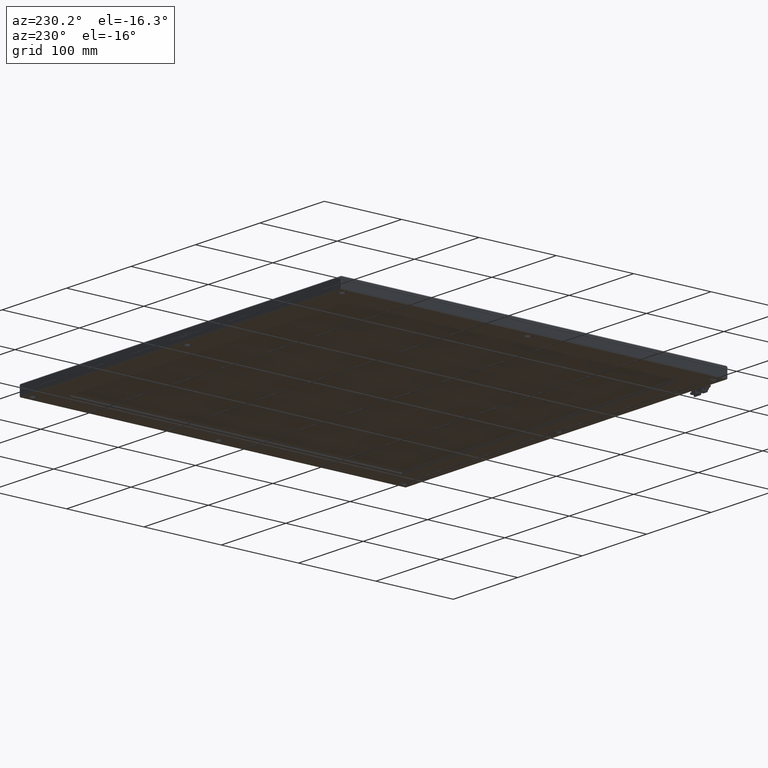
[diagram: clean part render]
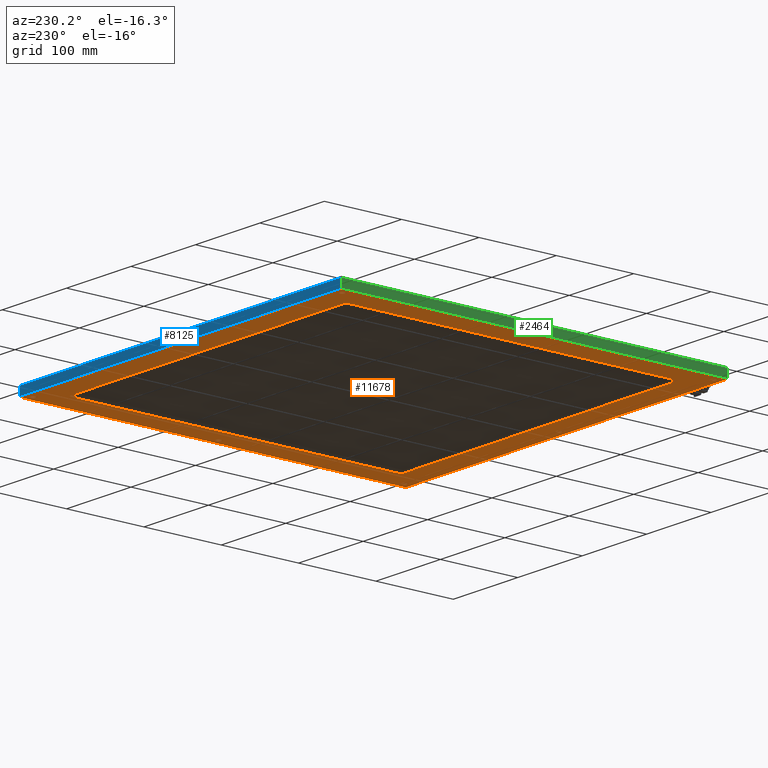
[diagram: same view with three faces highlighted in distinct colors, each labeled with its STEP entity id]
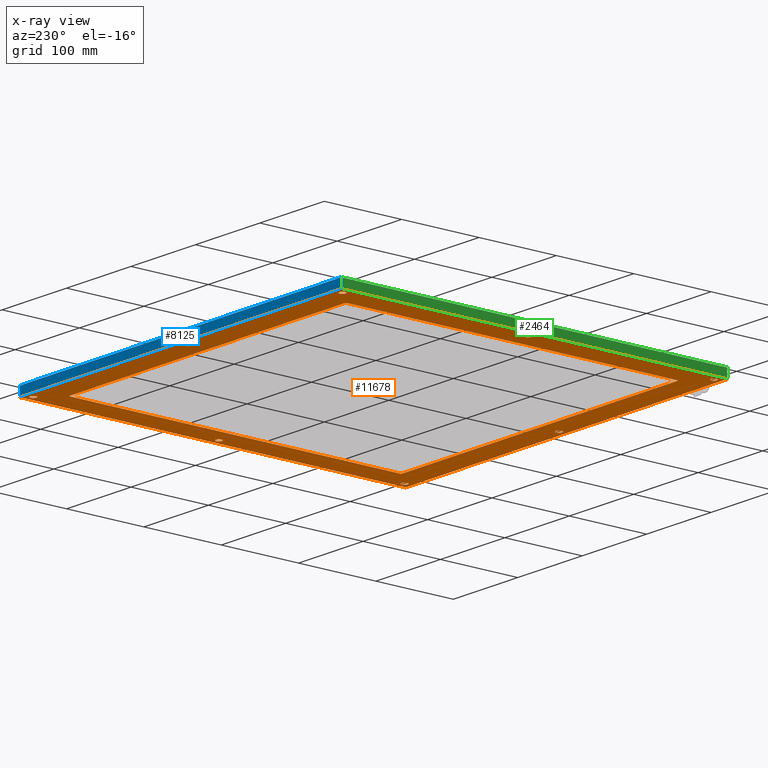
[diagram: x-ray of the same camera — body ghosted, the three highlighted faces saturated]
A machine part, auxiliary view with three faces highlighted in distinct colors.
The next image is the same camera in x-ray (body ghosted, the three faces saturated) — at least one of them is partly hidden behind the body in this view.
Their STEP definitions:

[orange] entity #11678 — the highlighted planar face has unit normal (0, 0, -1).
#11 = EDGE_LOOP ( 'NONE', ( #9052, #11710 ) ) ;
#43 = CIRCLE ( 'NONE', #16882, 4.000000000000003600 ) ;
#89 = CARTESIAN_POINT ( 'NONE',  ( -229.9711023082942100, 254.6974178403755800, -5.000000000000000900 ) ) ;
#105 = CIRCLE ( 'NONE', #10849, 4.000000000000003600 ) ;
#181 = CIRCLE ( 'NONE', #25144, 4.000000000000000000 ) ;
#185 = VERTEX_POINT ( 'NONE', #14002 ) ;
#215 = EDGE_LOOP ( 'NONE', ( #1779, #13660 ) ) ;
#634 = DIRECTION ( 'NONE',  ( -1.000000000000000000, 0.0000000000000000000, 0.0000000000000000000 ) ) ;
#680 = PLANE ( 'NONE',  #22686 ) ;
#725 = EDGE_LOOP ( 'NONE', ( #13191, #11131 ) ) ;
#792 = DIRECTION ( 'NONE',  ( -1.000000000000000000, 0.0000000000000000000, 0.0000000000000000000 ) ) ;
#796 = EDGE_CURVE ( 'NONE', #3300, #21929, #181, .T. ) ;
#913 = CARTESIAN_POINT ( 'NONE',  ( -233.9711023082942100, -225.3025821596242200, -5.000000000000000900 ) ) ;
#931 = CARTESIAN_POINT ( 'NONE',  ( -206.9711023082942900, 227.6974178403754900, -5.000000000000000900 ) ) ;
#1058 = CIRCLE ( 'NONE', #10361, 4.000000000000003600 ) ;
#1129 = EDGE_LOOP ( 'NONE', ( #10820, #22643 ) ) ;
#1261 = LINE ( 'NONE', #4599, #11702 ) ;
#1263 = EDGE_LOOP ( 'NONE', ( #15356, #6662, #22056, #21916 ) ) ;
#1475 = AXIS2_PLACEMENT_3D ( 'NONE', #15951, #4302, #17945 ) ;
#1488 = CARTESIAN_POINT ( 'NONE',  ( 256.0288976917057700, 263.6974178403756900, -5.000000000000000900 ) ) ;
#1698 = CIRCLE ( 'NONE', #20153, 4.000000000000003600 ) ;
#1769 = DIRECTION ( 'NONE',  ( -1.000000000000000000, 0.0000000000000000000, 0.0000000000000000000 ) ) ;
#1779 = ORIENTED_EDGE ( 'NONE', *, *, #21354, .T. ) ;
#1867 = CARTESIAN_POINT ( 'NONE',  ( -242.9711023082943200, 263.6974178403757500, -5.000000000000000900 ) ) ;
#1906 = ORIENTED_EDGE ( 'NONE', *, *, #18556, .T. ) ;
#2384 = VERTEX_POINT ( 'NONE', #6595 ) ;
#2419 = EDGE_LOOP ( 'NONE', ( #22926, #24454 ) ) ;
#2454 = CARTESIAN_POINT ( 'NONE',  ( -233.9711023082942100, 254.6974178403755800, -5.000000000000000900 ) ) ;
#2560 = VECTOR ( 'NONE', #22048, 1000.000000000000000 ) ;
#2631 = VERTEX_POINT ( 'NONE', #89 ) ;
#2633 = EDGE_CURVE ( 'NONE', #14108, #15470, #15063, .T. ) ;
#2639 = EDGE_CURVE ( 'NONE', #18101, #5464, #43, .T. ) ;
#2673 = EDGE_LOOP ( 'NONE', ( #21314, #1906 ) ) ;
#2939 = DIRECTION ( 'NONE',  ( -1.000000000000000000, 0.0000000000000000000, 0.0000000000000000000 ) ) ;
#2960 = DIRECTION ( 'NONE',  ( -1.000000000000000000, 0.0000000000000000000, 0.0000000000000000000 ) ) ;
#3266 = ORIENTED_EDGE ( 'NONE', *, *, #14857, .T. ) ;
#3296 = ORIENTED_EDGE ( 'NONE', *, *, #22831, .T. ) ;
#3300 = VERTEX_POINT ( 'NONE', #9903 ) ;
#3353 = EDGE_LOOP ( 'NONE', ( #25325, #6942 ) ) ;
#3682 = DIRECTION ( 'NONE',  ( 0.0000000000000000000, 0.0000000000000000000, 1.000000000000000000 ) ) ;
#3745 = EDGE_LOOP ( 'NONE', ( #10430, #13821 ) ) ;
#3837 = CIRCLE ( 'NONE', #17560, 4.000000000000003600 ) ;
#3863 = VERTEX_POINT ( 'NONE', #8006 ) ;
#3877 = CARTESIAN_POINT ( 'NONE',  ( -233.9711023082942100, 14.69741784037557900, -5.000000000000000900 ) ) ;
#3893 = EDGE_LOOP ( 'NONE', ( #17836, #11793, #20489, #15174, #3266, #8305, #21952, #3296 ) ) ;
#3936 = EDGE_CURVE ( 'NONE', #21929, #3300, #4180, .T. ) ;
#4048 = VERTEX_POINT ( 'NONE', #14712 ) ;
#4160 = LINE ( 'NONE', #8541, #24302 ) ;
#4180 = CIRCLE ( 'NONE', #13800, 4.000000000000000000 ) ;
#4302 = DIRECTION ( 'NONE',  ( 0.0000000000000000000, 0.0000000000000000000, 1.000000000000000000 ) ) ;
#4447 = DIRECTION ( 'NONE',  ( -1.000000000000000000, 0.0000000000000000000, 0.0000000000000000000 ) ) ;
#4599 = CARTESIAN_POINT ( 'NONE',  ( 255.0288976917058800, 264.6974178403755800, -5.000000000000000900 ) ) ;
#4622 = LINE ( 'NONE', #15405, #14351 ) ;
#4630 = FACE_BOUND ( 'NONE', #3745, .T. ) ;
#4760 = CARTESIAN_POINT ( 'NONE',  ( 255.0288976917058800, -234.3025821596244500, -5.000000000000000900 ) ) ;
#5030 = AXIS2_PLACEMENT_3D ( 'NONE', #18049, #6370, #20056 ) ;
#5058 = CIRCLE ( 'NONE', #8629, 4.000000000000003600 ) ;
#5118 = VERTEX_POINT ( 'NONE', #17736 ) ;
#5120 = CARTESIAN_POINT ( 'NONE',  ( 219.0288976917056800, 227.6974178403754900, -5.000000000000000900 ) ) ;
#5157 = CARTESIAN_POINT ( 'NONE',  ( 242.0288976917057700, 14.69741784037557900, -5.000000000000000900 ) ) ;
#5173 = VERTEX_POINT ( 'NONE', #19845 ) ;
#5268 = FACE_BOUND ( 'NONE', #3893, .T. ) ;
#5464 = VERTEX_POINT ( 'NONE', #15074 ) ;
#5470 = LINE ( 'NONE', #13384, #20402 ) ;
#5675 = CARTESIAN_POINT ( 'NONE',  ( 6.028897691705781300, 254.6974178403755800, -5.000000000000000900 ) ) ;
#5769 = CARTESIAN_POINT ( 'NONE',  ( 250.0288976917057700, 14.69741784037557900, -5.000000000000000900 ) ) ;
#5846 = DIRECTION ( 'NONE',  ( -1.000000000000000000, 0.0000000000000000000, 0.0000000000000000000 ) ) ;
#5945 = CIRCLE ( 'NONE', #23022, 2.000000000000001800 ) ;
#6143 = EDGE_CURVE ( 'NONE', #13654, #13101, #1698, .T. ) ;
#6370 = DIRECTION ( 'NONE',  ( 0.0000000000000000000, 0.0000000000000000000, 1.000000000000000000 ) ) ;
#6427 = EDGE_CURVE ( 'NONE', #7754, #14550, #13574, .T. ) ;
#6500 = CARTESIAN_POINT ( 'NONE',  ( 250.0288976917057700, -225.3025821596244500, -5.000000000000000900 ) ) ;
#6558 = DIRECTION ( 'NONE',  ( -0.0000000000000000000, -1.000000000000000000, -0.0000000000000000000 ) ) ;
#6595 = CARTESIAN_POINT ( 'NONE',  ( -206.9711023082942900, -200.3025821596244800, -5.000000000000000900 ) ) ;
#6628 = EDGE_CURVE ( 'NONE', #2384, #19540, #18148, .T. ) ;
#6662 = ORIENTED_EDGE ( 'NONE', *, *, #6427, .T. ) ;
#6823 = VERTEX_POINT ( 'NONE', #20663 ) ;
#6901 = CIRCLE ( 'NONE', #12659, 2.000000000000001800 ) ;
#6909 = CIRCLE ( 'NONE', #7243, 4.000000000000003600 ) ;
#6942 = ORIENTED_EDGE ( 'NONE', *, *, #12148, .T. ) ;
#7005 = AXIS2_PLACEMENT_3D ( 'NONE', #24254, #12532, #792 ) ;
#7062 = DIRECTION ( 'NONE',  ( -1.000000000000000000, 0.0000000000000000000, 0.0000000000000000000 ) ) ;
#7243 = AXIS2_PLACEMENT_3D ( 'NONE', #19950, #8210, #21909 ) ;
#7296 = CIRCLE ( 'NONE', #18541, 4.000000000000003600 ) ;
#7363 = CARTESIAN_POINT ( 'NONE',  ( 246.0288976917057700, -225.3025821596244500, -5.000000000000000900 ) ) ;
#7453 = CARTESIAN_POINT ( 'NONE',  ( 2.028897691705777700, 254.6974178403755800, -5.000000000000000900 ) ) ;
#7463 = EDGE_CURVE ( 'NONE', #185, #10298, #4160, .T. ) ;
#7618 = DIRECTION ( 'NONE',  ( -1.000000000000000000, 0.0000000000000000000, 0.0000000000000000000 ) ) ;
#7619 = DIRECTION ( 'NONE',  ( -0.0000000000000000000, -1.000000000000000000, -0.0000000000000000000 ) ) ;
#7754 = VERTEX_POINT ( 'NONE', #1867 ) ;
#8006 = CARTESIAN_POINT ( 'NONE',  ( -242.9711023082943200, -234.3025821596244500, -4.999999999999984000 ) ) ;
#8210 = DIRECTION ( 'NONE',  ( 0.0000000000000000000, 0.0000000000000000000, 1.000000000000000000 ) ) ;
#8305 = ORIENTED_EDGE ( 'NONE', *, *, #21699, .T. ) ;
#8541 = CARTESIAN_POINT ( 'NONE',  ( 221.0288976917057100, 264.6974178403755800, -5.000000000000000900 ) ) ;
#8607 = VERTEX_POINT ( 'NONE', #15413 ) ;
#8629 = AXIS2_PLACEMENT_3D ( 'NONE', #24102, #12384, #634 ) ;
#8672 = DIRECTION ( 'NONE',  ( 0.0000000000000000000, 0.0000000000000000000, 1.000000000000000000 ) ) ;
#8912 = CIRCLE ( 'NONE', #10403, 4.000000000000003600 ) ;
#8994 = CARTESIAN_POINT ( 'NONE',  ( 256.0288976917057700, -234.3025821596243900, -5.000000000000000900 ) ) ;
#9034 = CIRCLE ( 'NONE', #11852, 4.000000000000003600 ) ;
#9052 = ORIENTED_EDGE ( 'NONE', *, *, #16371, .T. ) ;
#9118 = VERTEX_POINT ( 'NONE', #9439 ) ;
#9169 = VERTEX_POINT ( 'NONE', #11627 ) ;
#9298 = DIRECTION ( 'NONE',  ( -1.000000000000000000, 0.0000000000000000000, 0.0000000000000000000 ) ) ;
#9439 = CARTESIAN_POINT ( 'NONE',  ( -237.9711023082942100, 254.6974178403755800, -5.000000000000000900 ) ) ;
#9837 = FACE_BOUND ( 'NONE', #725, .T. ) ;
#9903 = CARTESIAN_POINT ( 'NONE',  ( 10.02889769170578100, -225.3025821596242200, -5.000000000000000900 ) ) ;
#10144 = CARTESIAN_POINT ( 'NONE',  ( 219.0288976917056800, 229.6974178403754900, -5.000000000000000900 ) ) ;
#10298 = VERTEX_POINT ( 'NONE', #18426 ) ;
#10306 = CARTESIAN_POINT ( 'NONE',  ( 255.0288976917059400, 263.6974178403757500, -5.000000000000015100 ) ) ;
#10329 = DIRECTION ( 'NONE',  ( 0.0000000000000000000, 0.0000000000000000000, 1.000000000000000000 ) ) ;
#10361 = AXIS2_PLACEMENT_3D ( 'NONE', #913, #14627, #2939 ) ;
#10403 = AXIS2_PLACEMENT_3D ( 'NONE', #7363, #21007, #9298 ) ;
#10420 = DIRECTION ( 'NONE',  ( 0.0000000000000000000, 1.000000000000000000, 0.0000000000000000000 ) ) ;
#10430 = ORIENTED_EDGE ( 'NONE', *, *, #3936, .T. ) ;
#10539 = DIRECTION ( 'NONE',  ( 0.0000000000000000000, 0.0000000000000000000, -1.000000000000000000 ) ) ;
#10820 = ORIENTED_EDGE ( 'NONE', *, *, #20604, .T. ) ;
#10849 = AXIS2_PLACEMENT_3D ( 'NONE', #15343, #3682, #17317 ) ;
#10965 = EDGE_CURVE ( 'NONE', #6823, #19292, #7296, .T. ) ;
#11131 = ORIENTED_EDGE ( 'NONE', *, *, #20996, .T. ) ;
#11154 = EDGE_CURVE ( 'NONE', #14550, #20136, #1261, .T. ) ;
#11224 = VERTEX_POINT ( 'NONE', #14478 ) ;
#11576 = CIRCLE ( 'NONE', #17973, 4.000000000000003600 ) ;
#11627 = CARTESIAN_POINT ( 'NONE',  ( 242.0288976917057700, 254.6974178403755800, -5.000000000000000900 ) ) ;
#11647 = EDGE_CURVE ( 'NONE', #3863, #7754, #21469, .T. ) ;
#11678 = ADVANCED_FACE ( 'NONE', ( #20829, #20228, #5268, #15598, #14997, #25385, #9837, #4630, #24784, #19632 ), #680, .T. ) ;
#11702 = VECTOR ( 'NONE', #6558, 1000.000000000000000 ) ;
#11710 = ORIENTED_EDGE ( 'NONE', *, *, #19031, .T. ) ;
#11793 = ORIENTED_EDGE ( 'NONE', *, *, #21193, .T. ) ;
#11852 = AXIS2_PLACEMENT_3D ( 'NONE', #2454, #16098, #4447 ) ;
#12148 = EDGE_CURVE ( 'NONE', #2631, #9118, #20495, .T. ) ;
#12384 = DIRECTION ( 'NONE',  ( 0.0000000000000000000, 0.0000000000000000000, 1.000000000000000000 ) ) ;
#12532 = DIRECTION ( 'NONE',  ( 0.0000000000000000000, 0.0000000000000000000, 1.000000000000000000 ) ) ;
#12659 = AXIS2_PLACEMENT_3D ( 'NONE', #20413, #8672, #22390 ) ;
#12814 = CARTESIAN_POINT ( 'NONE',  ( -237.9711023082942100, -225.3025821596242200, -5.000000000000000900 ) ) ;
#12969 = EDGE_CURVE ( 'NONE', #5173, #11224, #5470, .T. ) ;
#13101 = VERTEX_POINT ( 'NONE', #17670 ) ;
#13191 = ORIENTED_EDGE ( 'NONE', *, *, #2633, .T. ) ;
#13347 = CARTESIAN_POINT ( 'NONE',  ( 2.028897691705781300, -225.3025821596242200, -5.000000000000000900 ) ) ;
#13384 = CARTESIAN_POINT ( 'NONE',  ( -208.9711023082942900, 264.6974178403755800, -5.000000000000000900 ) ) ;
#13456 = DIRECTION ( 'NONE',  ( 0.0000000000000000000, 0.0000000000000000000, 1.000000000000000000 ) ) ;
#13574 = LINE ( 'NONE', #1488, #23996 ) ;
#13654 = VERTEX_POINT ( 'NONE', #12814 ) ;
#13660 = ORIENTED_EDGE ( 'NONE', *, *, #15450, .T. ) ;
#13800 = AXIS2_PLACEMENT_3D ( 'NONE', #21700, #21627, #21593 ) ;
#13821 = ORIENTED_EDGE ( 'NONE', *, *, #796, .T. ) ;
#14002 = CARTESIAN_POINT ( 'NONE',  ( 221.0288976917057100, -198.3025821596244800, -5.000000000000000900 ) ) ;
#14108 = VERTEX_POINT ( 'NONE', #5157 ) ;
#14270 = VERTEX_POINT ( 'NONE', #17326 ) ;
#14351 = VECTOR ( 'NONE', #17370, 1000.000000000000000 ) ;
#14478 = CARTESIAN_POINT ( 'NONE',  ( -208.9711023082942900, -198.3025821596244800, -5.000000000000000900 ) ) ;
#14550 = VERTEX_POINT ( 'NONE', #10306 ) ;
#14627 = DIRECTION ( 'NONE',  ( 0.0000000000000000000, 0.0000000000000000000, 1.000000000000000000 ) ) ;
#14644 = DIRECTION ( 'NONE',  ( 0.0000000000000000000, 0.0000000000000000000, 1.000000000000000000 ) ) ;
#14712 = CARTESIAN_POINT ( 'NONE',  ( -237.9711023082942100, 14.69741784037557900, -5.000000000000000900 ) ) ;
#14857 = EDGE_CURVE ( 'NONE', #17008, #14270, #4622, .T. ) ;
#14970 = LINE ( 'NONE', #8994, #24754 ) ;
#14997 = FACE_BOUND ( 'NONE', #11, .T. ) ;
#15063 = CIRCLE ( 'NONE', #15569, 4.000000000000003600 ) ;
#15074 = CARTESIAN_POINT ( 'NONE',  ( 242.0288976917057700, -225.3025821596244500, -5.000000000000000900 ) ) ;
#15174 = ORIENTED_EDGE ( 'NONE', *, *, #23455, .T. ) ;
#15343 = CARTESIAN_POINT ( 'NONE',  ( -233.9711023082942100, 14.69741784037557900, -5.000000000000000900 ) ) ;
#15356 = ORIENTED_EDGE ( 'NONE', *, *, #11647, .T. ) ;
#15405 = CARTESIAN_POINT ( 'NONE',  ( 256.0288976917057700, 229.6974178403754900, -5.000000000000000900 ) ) ;
#15413 = CARTESIAN_POINT ( 'NONE',  ( -229.9711023082942100, 14.69741784037557900, -5.000000000000000900 ) ) ;
#15450 = EDGE_CURVE ( 'NONE', #8607, #4048, #11576, .T. ) ;
#15470 = VERTEX_POINT ( 'NONE', #5769 ) ;
#15508 = AXIS2_PLACEMENT_3D ( 'NONE', #5120, #18731, #7062 ) ;
#15569 = AXIS2_PLACEMENT_3D ( 'NONE', #21687, #21610, #21441 ) ;
#15598 = FACE_OUTER_BOUND ( 'NONE', #1263, .T. ) ;
#15951 = CARTESIAN_POINT ( 'NONE',  ( 6.028897691705781300, 254.6974178403755800, -5.000000000000000900 ) ) ;
#16065 = CIRCLE ( 'NONE', #1475, 4.000000000000003600 ) ;
#16098 = DIRECTION ( 'NONE',  ( 0.0000000000000000000, 0.0000000000000000000, 1.000000000000000000 ) ) ;
#16150 = CARTESIAN_POINT ( 'NONE',  ( -242.9711023082943200, 264.6974178403755800, -5.000000000000000900 ) ) ;
#16240 = CIRCLE ( 'NONE', #7005, 2.000000000000001800 ) ;
#16371 = EDGE_CURVE ( 'NONE', #9169, #5118, #6909, .T. ) ;
#16882 = AXIS2_PLACEMENT_3D ( 'NONE', #19819, #19643, #19383 ) ;
#17008 = VERTEX_POINT ( 'NONE', #10144 ) ;
#17317 = DIRECTION ( 'NONE',  ( -1.000000000000000000, 0.0000000000000000000, 0.0000000000000000000 ) ) ;
#17326 = CARTESIAN_POINT ( 'NONE',  ( -206.9711023082942900, 229.6974178403754900, -5.000000000000000900 ) ) ;
#17370 = DIRECTION ( 'NONE',  ( -1.000000000000000000, 0.0000000000000000000, -0.0000000000000000000 ) ) ;
#17427 = CIRCLE ( 'NONE', #15508, 2.000000000000001800 ) ;
#17453 = VECTOR ( 'NONE', #18146, 1000.000000000000000 ) ;
#17509 = DIRECTION ( 'NONE',  ( 0.0000000000000000000, 0.0000000000000000000, 1.000000000000000000 ) ) ;
#17560 = AXIS2_PLACEMENT_3D ( 'NONE', #25185, #13456, #1769 ) ;
#17670 = CARTESIAN_POINT ( 'NONE',  ( -229.9711023082942100, -225.3025821596242200, -5.000000000000000900 ) ) ;
#17736 = CARTESIAN_POINT ( 'NONE',  ( 250.0288976917057700, 254.6974178403755800, -5.000000000000000900 ) ) ;
#17836 = ORIENTED_EDGE ( 'NONE', *, *, #6628, .T. ) ;
#17882 = DIRECTION ( 'NONE',  ( -1.000000000000000000, 0.0000000000000000000, 0.0000000000000000000 ) ) ;
#17945 = DIRECTION ( 'NONE',  ( -1.000000000000000000, 0.0000000000000000000, 0.0000000000000000000 ) ) ;
#17973 = AXIS2_PLACEMENT_3D ( 'NONE', #3877, #17509, #5846 ) ;
#18049 = CARTESIAN_POINT ( 'NONE',  ( -233.9711023082942100, 254.6974178403755800, -5.000000000000000900 ) ) ;
#18101 = VERTEX_POINT ( 'NONE', #6500 ) ;
#18146 = DIRECTION ( 'NONE',  ( 0.0000000000000000000, 1.000000000000000000, 0.0000000000000000000 ) ) ;
#18148 = LINE ( 'NONE', #20096, #2560 ) ;
#18327 = CARTESIAN_POINT ( 'NONE',  ( 219.0288976917056800, -200.3025821596244800, -5.000000000000000900 ) ) ;
#18426 = CARTESIAN_POINT ( 'NONE',  ( 221.0288976917057100, 227.6974178403754900, -5.000000000000000900 ) ) ;
#18541 = AXIS2_PLACEMENT_3D ( 'NONE', #5675, #19324, #7618 ) ;
#18556 = EDGE_CURVE ( 'NONE', #13101, #13654, #1058, .T. ) ;
#18605 = DIRECTION ( 'NONE',  ( 0.0000000000000000000, 0.0000000000000000000, 1.000000000000000000 ) ) ;
#18731 = DIRECTION ( 'NONE',  ( 0.0000000000000000000, 0.0000000000000000000, 1.000000000000000000 ) ) ;
#19031 = EDGE_CURVE ( 'NONE', #5118, #9169, #5058, .T. ) ;
#19292 = VERTEX_POINT ( 'NONE', #7453 ) ;
#19324 = DIRECTION ( 'NONE',  ( 0.0000000000000000000, 0.0000000000000000000, 1.000000000000000000 ) ) ;
#19383 = DIRECTION ( 'NONE',  ( -1.000000000000000000, 0.0000000000000000000, 0.0000000000000000000 ) ) ;
#19540 = VERTEX_POINT ( 'NONE', #18327 ) ;
#19549 = CARTESIAN_POINT ( 'NONE',  ( 6.028897691705781300, -225.3025821596242200, -5.000000000000000900 ) ) ;
#19632 = FACE_BOUND ( 'NONE', #215, .T. ) ;
#19643 = DIRECTION ( 'NONE',  ( 0.0000000000000000000, 0.0000000000000000000, 1.000000000000000000 ) ) ;
#19819 = CARTESIAN_POINT ( 'NONE',  ( 246.0288976917057700, -225.3025821596244500, -5.000000000000000900 ) ) ;
#19845 = CARTESIAN_POINT ( 'NONE',  ( -208.9711023082942900, 227.6974178403754900, -5.000000000000000900 ) ) ;
#19950 = CARTESIAN_POINT ( 'NONE',  ( 246.0288976917057700, 254.6974178403755800, -5.000000000000000900 ) ) ;
#20056 = DIRECTION ( 'NONE',  ( -1.000000000000000000, 0.0000000000000000000, 0.0000000000000000000 ) ) ;
#20096 = CARTESIAN_POINT ( 'NONE',  ( 256.0288976917057700, -200.3025821596244800, -5.000000000000000900 ) ) ;
#20136 = VERTEX_POINT ( 'NONE', #4760 ) ;
#20153 = AXIS2_PLACEMENT_3D ( 'NONE', #22064, #10329, #24015 ) ;
#20228 = FACE_BOUND ( 'NONE', #3353, .T. ) ;
#20402 = VECTOR ( 'NONE', #7619, 1000.000000000000000 ) ;
#20413 = CARTESIAN_POINT ( 'NONE',  ( 219.0288976917056800, -198.3025821596244800, -5.000000000000000900 ) ) ;
#20489 = ORIENTED_EDGE ( 'NONE', *, *, #7463, .T. ) ;
#20495 = CIRCLE ( 'NONE', #5030, 4.000000000000003600 ) ;
#20604 = EDGE_CURVE ( 'NONE', #19292, #6823, #16065, .T. ) ;
#20663 = CARTESIAN_POINT ( 'NONE',  ( 10.02889769170578500, 254.6974178403755800, -5.000000000000000900 ) ) ;
#20829 = FACE_BOUND ( 'NONE', #2419, .T. ) ;
#20996 = EDGE_CURVE ( 'NONE', #15470, #14108, #3837, .T. ) ;
#21007 = DIRECTION ( 'NONE',  ( 0.0000000000000000000, 0.0000000000000000000, 1.000000000000000000 ) ) ;
#21017 = DIRECTION ( 'NONE',  ( 1.000000000000000000, -0.0000000000000000000, 0.0000000000000000000 ) ) ;
#21137 = EDGE_CURVE ( 'NONE', #9118, #2631, #9034, .T. ) ;
#21193 = EDGE_CURVE ( 'NONE', #19540, #185, #6901, .T. ) ;
#21314 = ORIENTED_EDGE ( 'NONE', *, *, #6143, .T. ) ;
#21354 = EDGE_CURVE ( 'NONE', #4048, #8607, #105, .T. ) ;
#21441 = DIRECTION ( 'NONE',  ( -1.000000000000000000, 0.0000000000000000000, 0.0000000000000000000 ) ) ;
#21469 = LINE ( 'NONE', #16150, #17453 ) ;
#21593 = DIRECTION ( 'NONE',  ( -1.000000000000000000, 0.0000000000000000000, 0.0000000000000000000 ) ) ;
#21610 = DIRECTION ( 'NONE',  ( 0.0000000000000000000, 0.0000000000000000000, 1.000000000000000000 ) ) ;
#21627 = DIRECTION ( 'NONE',  ( 0.0000000000000000000, 0.0000000000000000000, 1.000000000000000000 ) ) ;
#21687 = CARTESIAN_POINT ( 'NONE',  ( 246.0288976917057700, 14.69741784037557900, -5.000000000000000900 ) ) ;
#21699 = EDGE_CURVE ( 'NONE', #14270, #5173, #5945, .T. ) ;
#21700 = CARTESIAN_POINT ( 'NONE',  ( 6.028897691705781300, -225.3025821596242200, -5.000000000000000900 ) ) ;
#21909 = DIRECTION ( 'NONE',  ( -1.000000000000000000, 0.0000000000000000000, 0.0000000000000000000 ) ) ;
#21916 = ORIENTED_EDGE ( 'NONE', *, *, #23475, .T. ) ;
#21929 = VERTEX_POINT ( 'NONE', #13347 ) ;
#21952 = ORIENTED_EDGE ( 'NONE', *, *, #12969, .T. ) ;
#22048 = DIRECTION ( 'NONE',  ( 1.000000000000000000, -0.0000000000000000000, 0.0000000000000000000 ) ) ;
#22056 = ORIENTED_EDGE ( 'NONE', *, *, #11154, .T. ) ;
#22064 = CARTESIAN_POINT ( 'NONE',  ( -233.9711023082942100, -225.3025821596242200, -5.000000000000000900 ) ) ;
#22283 = CARTESIAN_POINT ( 'NONE',  ( 256.0288976917057700, 264.6974178403755800, -5.000000000000000900 ) ) ;
#22390 = DIRECTION ( 'NONE',  ( -1.000000000000000000, 0.0000000000000000000, 0.0000000000000000000 ) ) ;
#22643 = ORIENTED_EDGE ( 'NONE', *, *, #10965, .T. ) ;
#22686 = AXIS2_PLACEMENT_3D ( 'NONE', #22283, #10539, #24225 ) ;
#22831 = EDGE_CURVE ( 'NONE', #11224, #2384, #16240, .T. ) ;
#22926 = ORIENTED_EDGE ( 'NONE', *, *, #22987, .T. ) ;
#22987 = EDGE_CURVE ( 'NONE', #5464, #18101, #8912, .T. ) ;
#23022 = AXIS2_PLACEMENT_3D ( 'NONE', #931, #14644, #2960 ) ;
#23455 = EDGE_CURVE ( 'NONE', #10298, #17008, #17427, .T. ) ;
#23475 = EDGE_CURVE ( 'NONE', #20136, #3863, #14970, .T. ) ;
#23996 = VECTOR ( 'NONE', #21017, 1000.000000000000000 ) ;
#24015 = DIRECTION ( 'NONE',  ( -1.000000000000000000, 0.0000000000000000000, 0.0000000000000000000 ) ) ;
#24102 = CARTESIAN_POINT ( 'NONE',  ( 246.0288976917057700, 254.6974178403755800, -5.000000000000000900 ) ) ;
#24225 = DIRECTION ( 'NONE',  ( -1.000000000000000000, 0.0000000000000000000, -0.0000000000000000000 ) ) ;
#24254 = CARTESIAN_POINT ( 'NONE',  ( -206.9711023082942900, -198.3025821596244800, -5.000000000000000900 ) ) ;
#24302 = VECTOR ( 'NONE', #10420, 1000.000000000000000 ) ;
#24454 = ORIENTED_EDGE ( 'NONE', *, *, #2639, .T. ) ;
#24716 = DIRECTION ( 'NONE',  ( -1.000000000000000000, 0.0000000000000000000, -0.0000000000000000000 ) ) ;
#24754 = VECTOR ( 'NONE', #24716, 1000.000000000000000 ) ;
#24784 = FACE_BOUND ( 'NONE', #2673, .T. ) ;
#25144 = AXIS2_PLACEMENT_3D ( 'NONE', #19549, #18605, #17882 ) ;
#25185 = CARTESIAN_POINT ( 'NONE',  ( 246.0288976917057700, 14.69741784037557900, -5.000000000000000900 ) ) ;
#25325 = ORIENTED_EDGE ( 'NONE', *, *, #21137, .T. ) ;
#25385 = FACE_BOUND ( 'NONE', #1129, .T. ) ;

[blue] entity #8125 — the highlighted planar face has unit normal (0, -1, 0).
#10 = CARTESIAN_POINT ( 'NONE',  ( 17.58612763656031300, 264.6974178403755800, 0.9341294507851927200 ) ) ;
#73 = CARTESIAN_POINT ( 'NONE',  ( 14.13875067604092300, 264.6974178403755800, 1.780641078692170300 ) ) ;
#102 = CARTESIAN_POINT ( 'NONE',  ( 15.70296106003244000, 264.6974178403755800, -0.02633566549387067500 ) ) ;
#153 = CARTESIAN_POINT ( 'NONE',  ( 10.76727961060047700, 264.6974178403755800, 3.522501543808446800 ) ) ;
#231 = ORIENTED_EDGE ( 'NONE', *, *, #20811, .F. ) ;
#261 = VECTOR ( 'NONE', #16852, 1000.000000000000000 ) ;
#355 = CARTESIAN_POINT ( 'NONE',  ( -5.879768050234323700, 264.6974178403755800, 3.990604661755402300 ) ) ;
#385 = B_SPLINE_CURVE_WITH_KNOTS ( 'NONE', 3,
 ( #11562, #7572, #1811, #15488 ),
 .UNSPECIFIED., .F., .F.,
 ( 4, 4 ),
 ( 5.000000000000000000, 6.000000000000000000 ),
 .UNSPECIFIED. ) ;
#394 = CARTESIAN_POINT ( 'NONE',  ( 16.72541914548414300, 264.6974178403755800, 2.876922852624023800 ) ) ;
#400 = CARTESIAN_POINT ( 'NONE',  ( 17.51012709572763300, 264.6974178403755800, 2.317850381017748400 ) ) ;
#421 = CARTESIAN_POINT ( 'NONE',  ( -5.041968631692816900, 264.6974178403755800, 1.764362008924720500 ) ) ;
#430 = VERTEX_POINT ( 'NONE', #19722 ) ;
#439 = CARTESIAN_POINT ( 'NONE',  ( 14.71060032449966700, 264.6974178403755800, 0.03878061357589363000 ) ) ;
#462 = LINE ( 'NONE', #22688, #14855 ) ;
#483 = CARTESIAN_POINT ( 'NONE',  ( -0.7289616008652744000, 264.6974178403755800, 2.220175962413077500 ) ) ;
#541 = DIRECTION ( 'NONE',  ( 1.000000000000000000, -0.0000000000000000000, -0.0000000000000000000 ) ) ;
#555 = B_SPLINE_CURVE_WITH_KNOTS ( 'NONE', 3,
 ( #19284, #17282, #11293, #21236 ),
 .UNSPECIFIED., .F., .F.,
 ( 4, 4 ),
 ( 10.00000000000000000, 11.00000000000000000 ),
 .UNSPECIFIED. ) ;
#639 = CARTESIAN_POINT ( 'NONE',  ( -10.14785892723507600, 264.6974178403755800, 4.314143658915255300 ) ) ;
#718 = B_SPLINE_CURVE_WITH_KNOTS ( 'NONE', 3,
 ( #9833, #7863, #2047, #15684 ),
 .UNSPECIFIED., .F., .F.,
 ( 4, 4 ),
 ( 9.000000000000000000, 10.00000000000000000 ),
 .UNSPECIFIED. ) ;
#723 = CARTESIAN_POINT ( 'NONE',  ( 6.287222823147697400, 264.6974178403755800, 1.796920148459620000 ) ) ;
#732 = CARTESIAN_POINT ( 'NONE',  ( 18.81623850730118600, 264.6974178403755800, -0.02633566549387067500 ) ) ;
#742 = CARTESIAN_POINT ( 'NONE',  ( -3.356233098972427600, 264.6974178403755800, 3.115524799622404500 ) ) ;
#787 = ORIENTED_EDGE ( 'NONE', *, *, #16692, .F. ) ;
#814 = CARTESIAN_POINT ( 'NONE',  ( -3.584045429961935100, 264.6974178403755800, 1.503896892645642400 ) ) ;
#875 = B_SPLINE_CURVE_WITH_KNOTS ( 'NONE', 3,
 ( #2163, #11903, #13820, #4154 ),
 .UNSPECIFIED., .F., .F.,
 ( 4, 4 ),
 ( 13.00000000000000000, 14.00000000000000000 ),
 .UNSPECIFIED. ) ;
#976 = LINE ( 'NONE', #12640, #21224 ) ;
#979 = CARTESIAN_POINT ( 'NONE',  ( 3.629570037858242900, 264.6974178403755800, 3.522501543808446800 ) ) ;
#998 = VECTOR ( 'NONE', #12735, 1000.000000000000000 ) ;
#1059 = VERTEX_POINT ( 'NONE', #13115 ) ;
#1064 = CARTESIAN_POINT ( 'NONE',  ( 15.70296106003244000, 264.6974178403755800, -0.02633566549387067500 ) ) ;
#1082 = CARTESIAN_POINT ( 'NONE',  ( -6.831386888433710800, 264.6974178403755800, -0.9056518081577424900 ) ) ;
#1084 = CARTESIAN_POINT ( 'NONE',  ( 17.61650892374261400, 264.6974178403755800, 0.3048298293682194500 ) ) ;
#1157 = LINE ( 'NONE', #3488, #6410 ) ;
#1162 = ORIENTED_EDGE ( 'NONE', *, *, #7921, .F. ) ;
#1165 = EDGE_CURVE ( 'NONE', #13108, #24008, #4426, .T. ) ;
#1172 = CARTESIAN_POINT ( 'NONE',  ( -3.584045429961935100, 264.6974178403755800, 1.992268985668926900 ) ) ;
#1197 = CARTESIAN_POINT ( 'NONE',  ( -5.879768050234323700, 264.6974178403755800, 0.04600510742018559800 ) ) ;
#1225 = CARTESIAN_POINT ( 'NONE',  ( -242.9711023082943200, 264.6974178403755800, -4.000000000000111000 ) ) ;
#1230 = CARTESIAN_POINT ( 'NONE',  ( -2.703177393185540700, 264.6974178403755800, 0.9992457298549639600 ) ) ;
#1289 = EDGE_CURVE ( 'NONE', #1059, #16871, #19464, .T. ) ;
#1307 = EDGE_CURVE ( 'NONE', #9451, #24886, #4546, .T. ) ;
#1325 = DIRECTION ( 'NONE',  ( 1.000000000000000000, -0.0000000000000000000, -0.0000000000000000000 ) ) ;
#1375 = ORIENTED_EDGE ( 'NONE', *, *, #12649, .F. ) ;
#1396 = DIRECTION ( 'NONE',  ( 0.0000000000000000000, -1.000000000000000000, 0.0000000000000000000 ) ) ;
#1413 = B_SPLINE_CURVE_WITH_KNOTS ( 'NONE', 3,
 ( #9512, #21222, #25132, #13404 ),
 .UNSPECIFIED., .F., .F.,
 ( 4, 4 ),
 ( 11.00000000000000000, 12.00000000000000000 ),
 .UNSPECIFIED. ) ;
#1432 = VERTEX_POINT ( 'NONE', #19916 ) ;
#1468 = CARTESIAN_POINT ( 'NONE',  ( 12.57444564629523000, 264.6974178403755800, 0.5108736368317073900 ) ) ;
#1561 = CARTESIAN_POINT ( 'NONE',  ( 11.49624121146558600, 264.6974178403755800, 3.522501543808446800 ) ) ;
#1630 = CARTESIAN_POINT ( 'NONE',  ( -10.14785892723507600, 264.6974178403755800, -0.9056518081577424900 ) ) ;
#1695 = VERTEX_POINT ( 'NONE', #10042 ) ;
#1764 = CARTESIAN_POINT ( 'NONE',  ( 14.88285559762042500, 264.6974178403755800, 1.813199218227069800 ) ) ;
#1786 = CARTESIAN_POINT ( 'NONE',  ( -3.356233098972427600, 264.6974178403755800, 3.115524799622404500 ) ) ;
#1806 = CARTESIAN_POINT ( 'NONE',  ( 9.689075175770778300, 264.6974178403755800, 0.5108736368317073900 ) ) ;
#1811 = CARTESIAN_POINT ( 'NONE',  ( 8.954908058409760200, 264.6974178403755800, 0.02250154380844388000 ) ) ;
#1893 = DIRECTION ( 'NONE',  ( -0.0000000000000000000, -0.0000000000000000000, 1.000000000000000000 ) ) ;
#1957 = DIRECTION ( 'NONE',  ( -0.0000000000000000000, -0.0000000000000000000, 1.000000000000000000 ) ) ;
#1993 = VERTEX_POINT ( 'NONE', #6831 ) ;
#2011 = LINE ( 'NONE', #16909, #22202 ) ;
#2029 = CARTESIAN_POINT ( 'NONE',  ( 14.18929150892384100, 264.6974178403755800, 0.6411061949712428800 ) ) ;
#2030 = CARTESIAN_POINT ( 'NONE',  ( 17.94530827474299900, 264.6974178403755800, 1.894594567064263000 ) ) ;
#2047 = CARTESIAN_POINT ( 'NONE',  ( -1.002298539751089700, 264.6974178403755800, 3.620175962413089800 ) ) ;
#2065 = VERTEX_POINT ( 'NONE', #11794 ) ;
#2076 = EDGE_CURVE ( 'NONE', #12525, #15125, #4720, .T. ) ;
#2163 = CARTESIAN_POINT ( 'NONE',  ( 17.51012709572763300, 264.6974178403755800, 2.936455032180547600 ) ) ;
#2259 = LINE ( 'NONE', #4728, #21835 ) ;
#2339 = EDGE_CURVE ( 'NONE', #22588, #8611, #10808, .T. ) ;
#2345 = CARTESIAN_POINT ( 'NONE',  ( -3.416995673336920000, 264.6974178403755800, -0.02633566549387067500 ) ) ;
#2402 = VERTEX_POINT ( 'NONE', #10593 ) ;
#2432 = VECTOR ( 'NONE', #19285, 1000.000000000000000 ) ;
#2540 = LINE ( 'NONE', #11420, #25172 ) ;
#2566 = VERTEX_POINT ( 'NONE', #5851 ) ;
#2570 = CARTESIAN_POINT ( 'NONE',  ( 17.06974040021647100, 264.6974178403755800, 2.334129450785198000 ) ) ;
#2640 = DIRECTION ( 'NONE',  ( 1.000000000000000000, -0.0000000000000000000, -0.0000000000000000000 ) ) ;
#2680 = CARTESIAN_POINT ( 'NONE',  ( 12.99968902109255400, 264.6974178403755800, 3.522501543808446800 ) ) ;
#2682 = EDGE_CURVE ( 'NONE', #14419, #4368, #5071, .T. ) ;
#2694 = CARTESIAN_POINT ( 'NONE',  ( 18.80100054083289200, 264.6974178403755800, 3.131803869389854000 ) ) ;
#2709 = VERTEX_POINT ( 'NONE', #19897 ) ;
#2778 = CARTESIAN_POINT ( 'NONE',  ( 19.49958085451591900, 264.6974178403755800, 2.594594567064248300 ) ) ;
#2788 = CARTESIAN_POINT ( 'NONE',  ( -1.457923201730715300, 264.6974178403755800, 0.02250154380844388000 ) ) ;
#2816 = DIRECTION ( 'NONE',  ( -1.000000000000000000, -0.0000000000000000000, -0.0000000000000000000 ) ) ;
#2861 = DIRECTION ( 'NONE',  ( -1.000000000000000000, -0.0000000000000000000, -0.0000000000000000000 ) ) ;
#2876 = CARTESIAN_POINT ( 'NONE',  ( 19.48935911303423300, 264.6974178403755800, 2.952734101947997100 ) ) ;
#2884 = ORIENTED_EDGE ( 'NONE', *, *, #25279, .F. ) ;
#2947 = CARTESIAN_POINT ( 'NONE',  ( 8.965035154137378700, 264.6974178403755800, 2.323434480530989000 ) ) ;
#2951 = CARTESIAN_POINT ( 'NONE',  ( -10.14785892723507600, 264.6974178403755800, -0.9056518081577424900 ) ) ;
#2968 = FACE_BOUND ( 'NONE', #23815, .T. ) ;
#3097 = EDGE_CURVE ( 'NONE', #9394, #25375, #5885, .T. ) ;
#3100 = VERTEX_POINT ( 'NONE', #1630 ) ;
#3133 = EDGE_CURVE ( 'NONE', #10842, #7155, #18356, .T. ) ;
#3134 = CARTESIAN_POINT ( 'NONE',  ( 19.25662520281235100, 264.6974178403755800, 3.131803869389854000 ) ) ;
#3201 = CARTESIAN_POINT ( 'NONE',  ( 18.87700108166578900, 264.6974178403755800, 2.057385264738670100 ) ) ;
#3221 = DIRECTION ( 'NONE',  ( -0.0000000000000000000, -0.0000000000000000000, 1.000000000000000000 ) ) ;
#3247 = B_SPLINE_CURVE_WITH_KNOTS ( 'NONE', 3,
 ( #22593, #24516, #1084, #14772 ),
 .UNSPECIFIED., .F., .F.,
 ( 4, 4 ),
 ( 5.000000000000000000, 6.000000000000000000 ),
 .UNSPECIFIED. ) ;
#3263 = ORIENTED_EDGE ( 'NONE', *, *, #9356, .F. ) ;
#3428 = ORIENTED_EDGE ( 'NONE', *, *, #25125, .F. ) ;
#3449 = ORIENTED_EDGE ( 'NONE', *, *, #6754, .F. ) ;
#3451 = CARTESIAN_POINT ( 'NONE',  ( -5.879768050234323700, 264.6974178403755800, 3.362477230002401700 ) ) ;
#3463 = CARTESIAN_POINT ( 'NONE',  ( 12.57444564629523000, 264.6974178403755800, 0.5108736368317073900 ) ) ;
#3488 = CARTESIAN_POINT ( 'NONE',  ( 7.456571119524079800, 264.6974178403755800, 2.301571311250326400 ) ) ;
#3524 = CARTESIAN_POINT ( 'NONE',  ( 16.10283937263379200, 264.6974178403755800, 0.4783154972968356500 ) ) ;
#3527 = EDGE_CURVE ( 'NONE', #4368, #3100, #18948, .T. ) ;
#3561 = CARTESIAN_POINT ( 'NONE',  ( 0.7593428880475205900, 264.6974178403755800, 2.220175962413077500 ) ) ;
#3580 = VERTEX_POINT ( 'NONE', #2680 ) ;
#3592 = FACE_BOUND ( 'NONE', #13593, .T. ) ;
#3679 = VERTEX_POINT ( 'NONE', #15861 ) ;
#3688 = CARTESIAN_POINT ( 'NONE',  ( 0.0000000000000000000, 264.6974178403755800, 3.587617822878218300 ) ) ;
#3743 = CARTESIAN_POINT ( 'NONE',  ( 1.488304488912850500, 264.6974178403755800, 0.02250154380844388000 ) ) ;
#3849 = CARTESIAN_POINT ( 'NONE',  ( 0.7593428880475205900, 264.6974178403755800, 2.220175962413077500 ) ) ;
#3888 = CARTESIAN_POINT ( 'NONE',  ( 18.90728772309358200, 264.6974178403755800, 3.587617822878218300 ) ) ;
#3914 = ORIENTED_EDGE ( 'NONE', *, *, #11952, .F. ) ;
#4000 = ORIENTED_EDGE ( 'NONE', *, *, #11011, .F. ) ;
#4079 = CARTESIAN_POINT ( 'NONE',  ( 4.662249864791800900, 264.6974178403755800, 3.587617822878218300 ) ) ;
#4081 = CARTESIAN_POINT ( 'NONE',  ( 20.24378042184949000, 264.6974178403755800, 2.545757357761926800 ) ) ;
#4099 = ORIENTED_EDGE ( 'NONE', *, *, #17295, .F. ) ;
#4154 = CARTESIAN_POINT ( 'NONE',  ( 18.90728772309358200, 264.6974178403755800, 3.587617822878218300 ) ) ;
#4189 = ORIENTED_EDGE ( 'NONE', *, *, #24097, .F. ) ;
#4197 = CARTESIAN_POINT ( 'NONE',  ( 6.742847485127101400, 264.6974178403755800, 0.02250154380844388000 ) ) ;
#4257 = VERTEX_POINT ( 'NONE', #3463 ) ;
#4300 = DIRECTION ( 'NONE',  ( -1.000000000000000000, -0.0000000000000000000, -0.0000000000000000000 ) ) ;
#4308 = EDGE_CURVE ( 'NONE', #19215, #25247, #6492, .T. ) ;
#4322 = VERTEX_POINT ( 'NONE', #4829 ) ;
#4368 = VERTEX_POINT ( 'NONE', #1082 ) ;
#4375 = ORIENTED_EDGE ( 'NONE', *, *, #13612, .F. ) ;
#4426 = B_SPLINE_CURVE_WITH_KNOTS ( 'NONE', 3,
 ( #7770, #7854, #9406, #7678 ),
 .UNSPECIFIED., .F., .F.,
 ( 4, 4 ),
 ( 6.000000000000000000, 7.000000000000000000 ),
 .UNSPECIFIED. ) ;
#4436 = ORIENTED_EDGE ( 'NONE', *, *, #3133, .F. ) ;
#4449 = VECTOR ( 'NONE', #16424, 1000.000000000000000 ) ;
#4531 = CARTESIAN_POINT ( 'NONE',  ( 8.155151433207052500, 264.6974178403755800, 0.02250154380844388000 ) ) ;
#4546 = B_SPLINE_CURVE_WITH_KNOTS ( 'NONE', 3,
 ( #2778, #2876, #3134, #2694 ),
 .UNSPECIFIED., .F., .F.,
 ( 4, 4 ),
 ( 2.000000000000000000, 3.000000000000000000 ),
 .UNSPECIFIED. ) ;
#4548 = VERTEX_POINT ( 'NONE', #21292 ) ;
#4551 = CARTESIAN_POINT ( 'NONE',  ( 17.06974040021647100, 264.6974178403755800, 3.001571311250318600 ) ) ;
#4613 = CARTESIAN_POINT ( 'NONE',  ( -10.14785892723507600, 264.6974178403755800, 4.314143658915255300 ) ) ;
#4644 = CARTESIAN_POINT ( 'NONE',  ( 18.50229853975138300, 264.6974178403755800, 1.373664334506134800 ) ) ;
#4720 = B_SPLINE_CURVE_WITH_KNOTS ( 'NONE', 3,
 ( #16360, #12717, #12541, #16435 ),
 .UNSPECIFIED., .F., .F.,
 ( 4, 4 ),
 ( 9.000000000000000000, 10.00000000000000000 ),
 .UNSPECIFIED. ) ;
#4725 = CARTESIAN_POINT ( 'NONE',  ( 19.29202271498131400, 264.6974178403755800, 2.133433128448804200 ) ) ;
#4728 = CARTESIAN_POINT ( 'NONE',  ( 13.71350730124382100, 264.6974178403755800, 3.522501543808446800 ) ) ;
#4729 = CARTESIAN_POINT ( 'NONE',  ( 6.287222823147697400, 264.6974178403755800, 1.796920148459620000 ) ) ;
#4804 = EDGE_CURVE ( 'NONE', #6473, #15715, #7020, .T. ) ;
#4820 = CARTESIAN_POINT ( 'NONE',  ( 19.49958085451591900, 264.6974178403755800, 2.594594567064248300 ) ) ;
#4829 = CARTESIAN_POINT ( 'NONE',  ( 17.06974040021647100, 264.6974178403755800, 2.334129450785198000 ) ) ;
#4831 = LINE ( 'NONE', #1172, #15187 ) ;
#4850 = CARTESIAN_POINT ( 'NONE',  ( 7.456571119524079800, 264.6974178403755800, 3.522501543808446800 ) ) ;
#4896 = VERTEX_POINT ( 'NONE', #4531 ) ;
#4981 = DIRECTION ( 'NONE',  ( -0.0000000000000000000, -0.0000000000000000000, 1.000000000000000000 ) ) ;
#5014 = CARTESIAN_POINT ( 'NONE',  ( -1.943929150892420600, 264.6974178403755800, 0.9992457298549639600 ) ) ;
#5055 = LINE ( 'NONE', #5179, #17234 ) ;
#5071 = B_SPLINE_CURVE_WITH_KNOTS ( 'NONE', 3,
 ( #15251, #11745, #17113, #15166 ),
 .UNSPECIFIED., .F., .F.,
 ( 4, 4 ),
 ( 3.000000000000000000, 4.000000000000000000 ),
 .UNSPECIFIED. ) ;
#5159 = CARTESIAN_POINT ( 'NONE',  ( 3.629570037858242900, 264.6974178403755800, 0.01715405868135677600 ) ) ;
#5165 = EDGE_CURVE ( 'NONE', #4896, #10634, #22066, .T. ) ;
#5179 = CARTESIAN_POINT ( 'NONE',  ( -243.9711023082942100, 264.6974178403755800, -4.000000000000111000 ) ) ;
#5191 = VECTOR ( 'NONE', #15621, 1000.000000000000000 ) ;
#5274 = ORIENTED_EDGE ( 'NONE', *, *, #11189, .F. ) ;
#5315 = PLANE ( 'NONE',  #13076 ) ;
#5344 = CARTESIAN_POINT ( 'NONE',  ( 17.14574094104914800, 264.6974178403755800, 1.129478287994471800 ) ) ;
#5347 = ORIENTED_EDGE ( 'NONE', *, *, #11929, .F. ) ;
#5399 = CARTESIAN_POINT ( 'NONE',  ( 18.83138182801524600, 264.6974178403755800, 0.4783154972968356500 ) ) ;
#5506 = VECTOR ( 'NONE', #20216, 1000.000000000000000 ) ;
#5511 = EDGE_CURVE ( 'NONE', #16871, #17825, #7850, .T. ) ;
#5552 = CARTESIAN_POINT ( 'NONE',  ( -3.963669551108939300, 264.6974178403755800, 3.061340105192968100 ) ) ;
#5556 = CARTESIAN_POINT ( 'NONE',  ( 0.01514332071395063700, 264.6974178403755800, 3.115524799622404500 ) ) ;
#5660 = ORIENTED_EDGE ( 'NONE', *, *, #5787, .F. ) ;
#5787 = EDGE_CURVE ( 'NONE', #17289, #1993, #8282, .T. ) ;
#5789 = VERTEX_POINT ( 'NONE', #10855 ) ;
#5803 = EDGE_CURVE ( 'NONE', #15180, #11512, #4831, .T. ) ;
#5851 = CARTESIAN_POINT ( 'NONE',  ( 3.037276906436015000, 264.6974178403755800, 1.796920148459620000 ) ) ;
#5885 = LINE ( 'NONE', #23291, #20836 ) ;
#5961 = CARTESIAN_POINT ( 'NONE',  ( 19.80831530557070200, 264.6974178403755800, 3.587617822878218300 ) ) ;
#6032 = VERTEX_POINT ( 'NONE', #23524 ) ;
#6093 = LINE ( 'NONE', #16145, #5506 ) ;
#6139 = DIRECTION ( 'NONE',  ( -1.000000000000000000, -0.0000000000000000000, -0.0000000000000000000 ) ) ;
#6231 = CARTESIAN_POINT ( 'NONE',  ( 15.18136830719302200, 264.6974178403755800, 0.5001786665775263000 ) ) ;
#6281 = CARTESIAN_POINT ( 'NONE',  ( -4.459897241752274900, 264.6974178403755800, 0.02808564332169166700 ) ) ;
#6345 = CARTESIAN_POINT ( 'NONE',  ( 15.90039210383997700, 264.6974178403755800, 3.115524799622404500 ) ) ;
#6365 = ORIENTED_EDGE ( 'NONE', *, *, #2339, .F. ) ;
#6410 = VECTOR ( 'NONE', #22983, 1000.000000000000000 ) ;
#6436 = CARTESIAN_POINT ( 'NONE',  ( 10.76727961060047700, 264.6974178403755800, 0.5108736368317073900 ) ) ;
#6473 = VERTEX_POINT ( 'NONE', #1764 ) ;
#6478 = CARTESIAN_POINT ( 'NONE',  ( 14.72082206598168600, 264.6974178403755800, 3.533196514062628200 ) ) ;
#6492 = B_SPLINE_CURVE_WITH_KNOTS ( 'NONE', 3,
 ( #102, #439, #2029, #73 ),
 .UNSPECIFIED., .F., .F.,
 ( 4, 4 ),
 ( 8.000000000000000000, 9.000000000000000000 ),
 .UNSPECIFIED. ) ;
#6541 = VERTEX_POINT ( 'NONE', #21370 ) ;
#6600 = CARTESIAN_POINT ( 'NONE',  ( 18.90728772309358200, 264.6974178403755800, 1.438780613575898900 ) ) ;
#6622 = ORIENTED_EDGE ( 'NONE', *, *, #9422, .F. ) ;
#6654 = VERTEX_POINT ( 'NONE', #14219 ) ;
#6681 = EDGE_CURVE ( 'NONE', #5789, #4548, #12340, .T. ) ;
#6694 = LINE ( 'NONE', #20062, #16421 ) ;
#6754 = EDGE_CURVE ( 'NONE', #17309, #18800, #15440, .T. ) ;
#6812 = ORIENTED_EDGE ( 'NONE', *, *, #23594, .F. ) ;
#6825 = CARTESIAN_POINT ( 'NONE',  ( -2.612128177393147100, 264.6974178403755800, 2.578315497296798800 ) ) ;
#6831 = CARTESIAN_POINT ( 'NONE',  ( -3.416995673336920000, 264.6974178403755800, -0.02633566549387067500 ) ) ;
#6881 = CARTESIAN_POINT ( 'NONE',  ( 8.155151433207052500, 264.6974178403755800, 2.301571311250326400 ) ) ;
#6894 = LINE ( 'NONE', #11081, #21877 ) ;
#6898 = ORIENTED_EDGE ( 'NONE', *, *, #5511, .F. ) ;
#6948 = CARTESIAN_POINT ( 'NONE',  ( -0.7289616008652744000, 264.6974178403755800, 2.220175962413077500 ) ) ;
#6965 = CARTESIAN_POINT ( 'NONE',  ( 256.0288976917057700, 264.6974178403755800, 6.999999999999999100 ) ) ;
#6969 = CARTESIAN_POINT ( 'NONE',  ( -2.166725256895651900, 264.6974178403755800, 0.3155247996223936600 ) ) ;
#6995 = VERTEX_POINT ( 'NONE', #10955 ) ;
#7020 = B_SPLINE_CURVE_WITH_KNOTS ( 'NONE', 3,
 ( #8187, #19926, #6231, #21871 ),
 .UNSPECIFIED., .F., .F.,
 ( 4, 4 ),
 ( 2.000000000000000000, 3.000000000000000000 ),
 .UNSPECIFIED. ) ;
#7139 = ORIENTED_EDGE ( 'NONE', *, *, #24070, .F. ) ;
#7143 = ORIENTED_EDGE ( 'NONE', *, *, #22804, .F. ) ;
#7155 = VERTEX_POINT ( 'NONE', #25150 ) ;
#7278 = EDGE_CURVE ( 'NONE', #10746, #12588, #875, .T. ) ;
#7299 = CARTESIAN_POINT ( 'NONE',  ( 16.50262303948091300, 264.6974178403755800, -0.01540408085351496800 ) ) ;
#7429 = EDGE_CURVE ( 'NONE', #7155, #15095, #14506, .T. ) ;
#7437 = DIRECTION ( 'NONE',  ( 1.000000000000000000, -0.0000000000000000000, -0.0000000000000000000 ) ) ;
#7477 = CARTESIAN_POINT ( 'NONE',  ( 16.33055705786901200, 264.6974178403755800, 0.6955275037868330300 ) ) ;
#7513 = CARTESIAN_POINT ( 'NONE',  ( 18.80100054083289200, 264.6974178403755800, 3.131803869389854000 ) ) ;
#7515 = VERTEX_POINT ( 'NONE', #6948 ) ;
#7533 = ORIENTED_EDGE ( 'NONE', *, *, #16539, .F. ) ;
#7542 = EDGE_CURVE ( 'NONE', #6654, #8644, #3247, .T. ) ;
#7559 = CARTESIAN_POINT ( 'NONE',  ( 255.0288976917058800, 264.6974178403755800, 6.999999999999999100 ) ) ;
#7572 = CARTESIAN_POINT ( 'NONE',  ( 9.349675500270270900, 264.6974178403755800, 0.4025042479728555000 ) ) ;
#7671 = CARTESIAN_POINT ( 'NONE',  ( 16.43192266089787900, 264.6974178403755800, 1.129478287994471800 ) ) ;
#7678 = CARTESIAN_POINT ( 'NONE',  ( 17.06974040021647100, 264.6974178403755800, 3.001571311250318600 ) ) ;
#7696 = CARTESIAN_POINT ( 'NONE',  ( 1.488304488912850500, 264.6974178403755800, 2.008548055436349100 ) ) ;
#7700 = ORIENTED_EDGE ( 'NONE', *, *, #9492, .F. ) ;
#7770 = CARTESIAN_POINT ( 'NONE',  ( 15.73334234721474100, 264.6974178403755800, 3.587617822878218300 ) ) ;
#7850 = B_SPLINE_CURVE_WITH_KNOTS ( 'NONE', 3,
 ( #3561, #15242, #17194, #5556 ),
 .UNSPECIFIED., .F., .F.,
 ( 4, 4 ),
 ( 4.000000000000000000, 5.000000000000000000 ),
 .UNSPECIFIED. ) ;
#7854 = CARTESIAN_POINT ( 'NONE',  ( 16.33055705786901200, 264.6974178403755800, 3.587617822878218300 ) ) ;
#7863 = CARTESIAN_POINT ( 'NONE',  ( -1.488304488913017000, 264.6974178403755800, 3.104829829368202600 ) ) ;
#7888 = CARTESIAN_POINT ( 'NONE',  ( 20.24378042184949000, 264.6974178403755800, 2.545757357761926800 ) ) ;
#7921 = EDGE_CURVE ( 'NONE', #25247, #13108, #25330, .T. ) ;
#8125 = ADVANCED_FACE ( 'NONE', ( #13935, #8748, #24358, #3592, #23774, #18547, #13336, #8161, #2968, #23177 ), #5315, .F. ) ;
#8129 = CARTESIAN_POINT ( 'NONE',  ( -3.584045429961935100, 264.6974178403755800, 1.503896892645642400 ) ) ;
#8161 = FACE_BOUND ( 'NONE', #18290, .T. ) ;
#8164 = CARTESIAN_POINT ( 'NONE',  ( 0.0000000000000000000, 264.6974178403755800, 3.587617822878218300 ) ) ;
#8187 = CARTESIAN_POINT ( 'NONE',  ( 14.88285559762042500, 264.6974178403755800, 1.813199218227069800 ) ) ;
#8208 = VERTEX_POINT ( 'NONE', #1561 ) ;
#8213 = EDGE_CURVE ( 'NONE', #25375, #20386, #24681, .T. ) ;
#8235 = DIRECTION ( 'NONE',  ( -0.0000000000000000000, -0.0000000000000000000, -1.000000000000000000 ) ) ;
#8282 = B_SPLINE_CURVE_WITH_KNOTS ( 'NONE', 3,
 ( #5014, #6969, #8891, #22612 ),
 .UNSPECIFIED., .F., .F.,
 ( 4, 4 ),
 ( 13.00000000000000000, 14.00000000000000000 ),
 .UNSPECIFIED. ) ;
#8410 = ORIENTED_EDGE ( 'NONE', *, *, #19742, .F. ) ;
#8452 = CARTESIAN_POINT ( 'NONE',  ( -11.09956338544415600, 264.6974178403755800, 3.990604661755402300 ) ) ;
#8502 = CARTESIAN_POINT ( 'NONE',  ( 17.51012709572763300, 264.6974178403755800, 2.936455032180547600 ) ) ;
#8520 = CARTESIAN_POINT ( 'NONE',  ( 14.90310978907510800, 264.6974178403755800, 2.638084291239482800 ) ) ;
#8523 = CARTESIAN_POINT ( 'NONE',  ( 4.662249864791800900, 264.6974178403755800, 3.587617822878218300 ) ) ;
#8585 = CARTESIAN_POINT ( 'NONE',  ( 255.0288976917058800, 264.6974178403755800, 6.999999999999999100 ) ) ;
#8608 = CARTESIAN_POINT ( 'NONE',  ( 4.662249864791800900, 264.6974178403755800, -0.02633566549387067500 ) ) ;
#8611 = VERTEX_POINT ( 'NONE', #3743 ) ;
#8644 = VERTEX_POINT ( 'NONE', #13425 ) ;
#8700 = ORIENTED_EDGE ( 'NONE', *, *, #18538, .F. ) ;
#8748 = FACE_BOUND ( 'NONE', #17457, .T. ) ;
#8761 = DIRECTION ( 'NONE',  ( -0.0000000000000000000, -0.0000000000000000000, 1.000000000000000000 ) ) ;
#8780 = CARTESIAN_POINT ( 'NONE',  ( 12.99968902109255400, 264.6974178403755800, 3.522501543808446800 ) ) ;
#8856 = VERTEX_POINT ( 'NONE', #14548 ) ;
#8887 = DIRECTION ( 'NONE',  ( -1.000000000000000000, 0.0000000000000000000, -0.0000000000000000000 ) ) ;
#8891 = CARTESIAN_POINT ( 'NONE',  ( -2.657652785289510400, 264.6974178403755800, -0.02633566549387067500 ) ) ;
#8901 = EDGE_CURVE ( 'NONE', #16837, #21551, #23850, .T. ) ;
#8962 = LINE ( 'NONE', #17497, #13537 ) ;
#8972 = DIRECTION ( 'NONE',  ( 0.0000000000000000000, -0.0000000000000000000, -1.000000000000000000 ) ) ;
#9044 = ORIENTED_EDGE ( 'NONE', *, *, #23802, .F. ) ;
#9046 = CARTESIAN_POINT ( 'NONE',  ( 3.087817739318599000, 264.6974178403755800, 0.6248271252037931300 ) ) ;
#9051 = CARTESIAN_POINT ( 'NONE',  ( -3.416995673336920000, 264.6974178403755800, 0.4620364275293859000 ) ) ;
#9142 = VERTEX_POINT ( 'NONE', #11554 ) ;
#9251 = CARTESIAN_POINT ( 'NONE',  ( -10.77607196312940700, 264.6974178403755800, -0.9056518081577424900 ) ) ;
#9285 = CARTESIAN_POINT ( 'NONE',  ( 19.45405624661988900, 264.6974178403755800, 1.064362008924735200 ) ) ;
#9338 = VECTOR ( 'NONE', #18283, 1000.000000000000000 ) ;
#9356 = EDGE_CURVE ( 'NONE', #4322, #19517, #21955, .T. ) ;
#9394 = VERTEX_POINT ( 'NONE', #639 ) ;
#9406 = CARTESIAN_POINT ( 'NONE',  ( 16.77595997836661800, 264.6974178403755800, 3.392268985668904300 ) ) ;
#9422 = EDGE_CURVE ( 'NONE', #3580, #3679, #2259, .T. ) ;
#9451 = VERTEX_POINT ( 'NONE', #4820 ) ;
#9492 = EDGE_CURVE ( 'NONE', #14563, #11201, #976, .T. ) ;
#9512 = CARTESIAN_POINT ( 'NONE',  ( -5.041968631692816900, 264.6974178403755800, 1.764362008924720500 ) ) ;
#9539 = EDGE_CURVE ( 'NONE', #15095, #12345, #9898, .T. ) ;
#9544 = CARTESIAN_POINT ( 'NONE',  ( -3.584045429961935100, 264.6974178403755800, 1.992268985668926900 ) ) ;
#9602 = ORIENTED_EDGE ( 'NONE', *, *, #2076, .F. ) ;
#9647 = VECTOR ( 'NONE', #23183, 1000.000000000000000 ) ;
#9750 = CARTESIAN_POINT ( 'NONE',  ( 0.7593428880475205900, 264.6974178403755800, 2.220175962413077500 ) ) ;
#9753 = EDGE_CURVE ( 'NONE', #23781, #12525, #21892, .T. ) ;
#9796 = ORIENTED_EDGE ( 'NONE', *, *, #21471, .F. ) ;
#9820 = B_SPLINE_CURVE_WITH_KNOTS ( 'NONE', 3,
 ( #8164, #23645, #23808, #12083 ),
 .UNSPECIFIED., .F., .F.,
 ( 4, 4 ),
 ( 8.000000000000000000, 9.000000000000000000 ),
 .UNSPECIFIED. ) ;
#9833 = CARTESIAN_POINT ( 'NONE',  ( -1.457923201730715300, 264.6974178403755800, 2.041106194971220600 ) ) ;
#9861 = CARTESIAN_POINT ( 'NONE',  ( 20.24378042184949000, 264.6974178403755800, 1.992268985668926900 ) ) ;
#9880 = EDGE_CURVE ( 'NONE', #10634, #2065, #13476, .T. ) ;
#9887 = VERTEX_POINT ( 'NONE', #22765 ) ;
#9898 = LINE ( 'NONE', #153, #15069 ) ;
#10042 = CARTESIAN_POINT ( 'NONE',  ( 11.49624121146558600, 264.6974178403755800, 0.5108736368317073900 ) ) ;
#10135 = B_SPLINE_CURVE_WITH_KNOTS ( 'NONE', 3,
 ( #18777, #5159, #9046, #22752 ),
 .UNSPECIFIED., .F., .F.,
 ( 4, 4 ),
 ( 2.000000000000000000, 3.000000000000000000 ),
 .UNSPECIFIED. ) ;
#10176 = CARTESIAN_POINT ( 'NONE',  ( 18.80100054083289200, 264.6974178403755800, 3.131803869389854000 ) ) ;
#10185 = ORIENTED_EDGE ( 'NONE', *, *, #16407, .F. ) ;
#10211 = LINE ( 'NONE', #18184, #19419 ) ;
#10253 = CARTESIAN_POINT ( 'NONE',  ( 0.01514332071395063700, 264.6974178403755800, 3.115524799622404500 ) ) ;
#10312 = CARTESIAN_POINT ( 'NONE',  ( 20.15263656030291600, 264.6974178403755800, 1.064362008924735200 ) ) ;
#10349 = EDGE_CURVE ( 'NONE', #20101, #14861, #10372, .T. ) ;
#10350 = CARTESIAN_POINT ( 'NONE',  ( -3.984113034072367400, 264.6974178403755800, 0.5164577363449482900 ) ) ;
#10372 = LINE ( 'NONE', #6825, #21439 ) ;
#10414 = CARTESIAN_POINT ( 'NONE',  ( -3.416995673336920000, 264.6974178403755800, 0.4620364275293859000 ) ) ;
#10506 = CARTESIAN_POINT ( 'NONE',  ( 20.15263656030291600, 264.6974178403755800, 1.064362008924735200 ) ) ;
#10512 = CARTESIAN_POINT ( 'NONE',  ( 18.30978907517594200, 264.6974178403755800, 1.205526151704605600 ) ) ;
#10514 = CARTESIAN_POINT ( 'NONE',  ( 18.83138182801524600, 264.6974178403755800, 0.4783154972968356500 ) ) ;
#10520 = EDGE_CURVE ( 'NONE', #16573, #2402, #1157, .T. ) ;
#10533 = ORIENTED_EDGE ( 'NONE', *, *, #1165, .F. ) ;
#10559 = DIRECTION ( 'NONE',  ( -0.0000000000000000000, -0.0000000000000000000, 1.000000000000000000 ) ) ;
#10579 = B_SPLINE_CURVE_WITH_KNOTS ( 'NONE', 3,
 ( #10, #11763, #2030, #15666 ),
 .UNSPECIFIED., .F., .F.,
 ( 4, 4 ),
 ( 4.000000000000000000, 5.000000000000000000 ),
 .UNSPECIFIED. ) ;
#10585 = CARTESIAN_POINT ( 'NONE',  ( 19.49958085451591900, 264.6974178403755800, 2.312502895890661500 ) ) ;
#10588 = CARTESIAN_POINT ( 'NONE',  ( 9.689075175770778300, 264.6974178403755800, 0.02250154380844388000 ) ) ;
#10593 = CARTESIAN_POINT ( 'NONE',  ( 7.456571119524079800, 264.6974178403755800, 2.301571311250326400 ) ) ;
#10634 = VERTEX_POINT ( 'NONE', #12015 ) ;
#10666 = CARTESIAN_POINT ( 'NONE',  ( 3.087817739318599000, 264.6974178403755800, 2.925760061926338600 ) ) ;
#10746 = VERTEX_POINT ( 'NONE', #8502 ) ;
#10804 = ORIENTED_EDGE ( 'NONE', *, *, #20061, .F. ) ;
#10808 = LINE ( 'NONE', #12650, #998 ) ;
#10842 = VERTEX_POINT ( 'NONE', #18581 ) ;
#10846 = ORIENTED_EDGE ( 'NONE', *, *, #23820, .F. ) ;
#10855 = CARTESIAN_POINT ( 'NONE',  ( 19.45405624661988900, 264.6974178403755800, 1.064362008924735200 ) ) ;
#10912 = B_SPLINE_CURVE_WITH_KNOTS ( 'NONE', 3,
 ( #19206, #5552, #23149, #11386 ),
 .UNSPECIFIED., .F., .F.,
 ( 4, 4 ),
 ( 3.000000000000000000, 4.000000000000000000 ),
 .UNSPECIFIED. ) ;
#10950 = LINE ( 'NONE', #13657, #5191 ) ;
#10955 = CARTESIAN_POINT ( 'NONE',  ( 12.99968902109255400, 264.6974178403755800, 0.02250154380844388000 ) ) ;
#10971 = ORIENTED_EDGE ( 'NONE', *, *, #4308, .F. ) ;
#10993 = CARTESIAN_POINT ( 'NONE',  ( 16.98361276365611900, 264.6974178403755800, 0.3699461084379837600 ) ) ;
#11011 = EDGE_CURVE ( 'NONE', #9887, #20978, #718, .T. ) ;
#11038 = VERTEX_POINT ( 'NONE', #13785 ) ;
#11071 = B_SPLINE_CURVE_WITH_KNOTS ( 'NONE', 3,
 ( #17626, #5961, #15724, #4081 ),
 .UNSPECIFIED., .F., .F.,
 ( 4, 4 ),
 ( 12.00000000000000000, 13.00000000000000000 ),
 .UNSPECIFIED. ) ;
#11081 = CARTESIAN_POINT ( 'NONE',  ( 12.99968902109255400, 264.6974178403755800, 0.02250154380844388000 ) ) ;
#11163 = ORIENTED_EDGE ( 'NONE', *, *, #8213, .F. ) ;
#11183 = ORIENTED_EDGE ( 'NONE', *, *, #6681, .F. ) ;
#11189 = EDGE_CURVE ( 'NONE', #8856, #14839, #19687, .T. ) ;
#11201 = VERTEX_POINT ( 'NONE', #2788 ) ;
#11204 = CARTESIAN_POINT ( 'NONE',  ( -10.14785892723507600, 264.6974178403755800, -0.9056518081577424900 ) ) ;
#11279 = CARTESIAN_POINT ( 'NONE',  ( -11.09956338544415600, 264.6974178403755800, 0.2363193665335244800 ) ) ;
#11293 = CARTESIAN_POINT ( 'NONE',  ( -2.131327744726907400, 264.6974178403755800, 3.327152706599140000 ) ) ;
#11307 = ORIENTED_EDGE ( 'NONE', *, *, #18704, .F. ) ;
#11335 = CARTESIAN_POINT ( 'NONE',  ( 13.71350730124382100, 264.6974178403755800, 0.02250154380844388000 ) ) ;
#11386 = CARTESIAN_POINT ( 'NONE',  ( -4.313007030827709100, 264.6974178403755800, 1.780641078692170300 ) ) ;
#11419 = B_SPLINE_CURVE_WITH_KNOTS ( 'NONE', 3,
 ( #23276, #13393, #13470, #1786 ),
 .UNSPECIFIED., .F., .F.,
 ( 4, 4 ),
 ( 4.000000000000000000, 5.000000000000000000 ),
 .UNSPECIFIED. ) ;
#11420 = CARTESIAN_POINT ( 'NONE',  ( 12.57444564629523000, 264.6974178403755800, 0.02250154380844388000 ) ) ;
#11469 = CARTESIAN_POINT ( 'NONE',  ( -5.041968631692816900, 264.6974178403755800, 1.764362008924720500 ) ) ;
#11497 = LINE ( 'NONE', #4850, #12105 ) ;
#11512 = VERTEX_POINT ( 'NONE', #9544 ) ;
#11554 = CARTESIAN_POINT ( 'NONE',  ( 17.51012709572763300, 264.6974178403755800, 2.317850381017748400 ) ) ;
#11562 = CARTESIAN_POINT ( 'NONE',  ( 9.339737696052008400, 264.6974178403755800, 1.162036427529371300 ) ) ;
#11594 = B_SPLINE_CURVE_WITH_KNOTS ( 'NONE', 3,
 ( #18178, #8452, #16265, #4613 ),
 .UNSPECIFIED., .F., .F.,
 ( 4, 4 ),
 ( 7.000000000000000000, 8.000000000000000000 ),
 .UNSPECIFIED. ) ;
#11604 = CARTESIAN_POINT ( 'NONE',  ( 8.155151433207052500, 264.6974178403755800, 2.301571311250326400 ) ) ;
#11745 = CARTESIAN_POINT ( 'NONE',  ( -5.879768050234323700, 264.6974178403755800, -0.5822555110171767600 ) ) ;
#11750 = LINE ( 'NONE', #15024, #16923 ) ;
#11763 = CARTESIAN_POINT ( 'NONE',  ( 17.51514332071396800, 264.6974178403755800, 1.520175962413092400 ) ) ;
#11765 = B_SPLINE_CURVE_WITH_KNOTS ( 'NONE', 3,
 ( #20183, #22137, #8520, #22227 ),
 .UNSPECIFIED., .F., .F.,
 ( 4, 4 ),
 ( 3.000000000000000000, 4.000000000000000000 ),
 .UNSPECIFIED. ) ;
#11794 = CARTESIAN_POINT ( 'NONE',  ( 6.742847485127101400, 264.6974178403755800, 3.522501543808446800 ) ) ;
#11808 = CARTESIAN_POINT ( 'NONE',  ( 18.90728772309358200, 264.6974178403755800, 1.438780613575898900 ) ) ;
#11903 = CARTESIAN_POINT ( 'NONE',  ( 17.85425905895082700, 264.6974178403755800, 3.402963955923113300 ) ) ;
#11929 = EDGE_CURVE ( 'NONE', #21651, #21010, #555, .T. ) ;
#11938 = CARTESIAN_POINT ( 'NONE',  ( -5.879768050234323700, 264.6974178403755800, 0.04600510742018559800 ) ) ;
#11952 = EDGE_CURVE ( 'NONE', #21551, #4896, #385, .T. ) ;
#12015 = CARTESIAN_POINT ( 'NONE',  ( 6.742847485127101400, 264.6974178403755800, 0.02250154380844388000 ) ) ;
#12083 = CARTESIAN_POINT ( 'NONE',  ( 1.488304488912850500, 264.6974178403755800, 2.008548055436349100 ) ) ;
#12105 = VECTOR ( 'NONE', #14539, 1000.000000000000000 ) ;
#12115 = ORIENTED_EDGE ( 'NONE', *, *, #25395, .F. ) ;
#12144 = EDGE_CURVE ( 'NONE', #1993, #23739, #16160, .T. ) ;
#12146 = CARTESIAN_POINT ( 'NONE',  ( 17.88464034613312800, 264.6974178403755800, 2.849712198216239200 ) ) ;
#12161 = CARTESIAN_POINT ( 'NONE',  ( -5.001649540292030200, 264.6974178403755800, 0.6248271252037931300 ) ) ;
#12220 = CARTESIAN_POINT ( 'NONE',  ( -0.7289616008652744000, 264.6974178403755800, 2.817154058681339700 ) ) ;
#12263 = B_SPLINE_CURVE_WITH_KNOTS ( 'NONE', 3,
 ( #7888, #9861, #23530, #11808 ),
 .UNSPECIFIED., .F., .F.,
 ( 4, 4 ),
 ( 11.00000000000000000, 12.00000000000000000 ),
 .UNSPECIFIED. ) ;
#12332 = VERTEX_POINT ( 'NONE', #16747 ) ;
#12340 = LINE ( 'NONE', #10312, #22512 ) ;
#12345 = VERTEX_POINT ( 'NONE', #22777 ) ;
#12383 = B_SPLINE_CURVE_WITH_KNOTS ( 'NONE', 3,
 ( #4729, #16369, #20350, #8608 ),
 .UNSPECIFIED., .F., .F.,
 ( 4, 4 ),
 ( 3.000000000000000000, 4.000000000000000000 ),
 .UNSPECIFIED. ) ;
#12471 = CARTESIAN_POINT ( 'NONE',  ( 6.236398053001634500, 264.6974178403755800, 2.925760061926338600 ) ) ;
#12481 = CARTESIAN_POINT ( 'NONE',  ( 19.58551919956746800, 264.6974178403755800, -0.004472496213180077200 ) ) ;
#12509 = VECTOR ( 'NONE', #7437, 1000.000000000000000 ) ;
#12525 = VERTEX_POINT ( 'NONE', #25131 ) ;
#12541 = CARTESIAN_POINT ( 'NONE',  ( 18.48706057328286400, 264.6974178403755800, 0.4783154972968356500 ) ) ;
#12588 = VERTEX_POINT ( 'NONE', #3888 ) ;
#12640 = CARTESIAN_POINT ( 'NONE',  ( -1.457923201730715300, 264.6974178403755800, 0.02250154380844388000 ) ) ;
#12649 = EDGE_CURVE ( 'NONE', #24886, #9142, #16439, .T. ) ;
#12650 = CARTESIAN_POINT ( 'NONE',  ( 1.488304488912850500, 264.6974178403755800, 0.02250154380844388000 ) ) ;
#12657 = EDGE_LOOP ( 'NONE', ( #3914, #21165, #13491, #15581, #8700, #25394, #19015 ) ) ;
#12676 = ORIENTED_EDGE ( 'NONE', *, *, #22011, .F. ) ;
#12706 = VERTEX_POINT ( 'NONE', #10414 ) ;
#12717 = CARTESIAN_POINT ( 'NONE',  ( 18.32001081665762900, 264.6974178403755800, 0.6304112247170687900 ) ) ;
#12732 = EDGE_CURVE ( 'NONE', #4548, #6654, #16273, .T. ) ;
#12735 = DIRECTION ( 'NONE',  ( -0.0000000000000000000, -0.0000000000000000000, -1.000000000000000000 ) ) ;
#12742 = ORIENTED_EDGE ( 'NONE', *, *, #7278, .F. ) ;
#12782 = ORIENTED_EDGE ( 'NONE', *, *, #13748, .F. ) ;
#12832 = EDGE_CURVE ( 'NONE', #12706, #6032, #16964, .T. ) ;
#12864 = VECTOR ( 'NONE', #20787, 1000.000000000000000 ) ;
#12964 = CARTESIAN_POINT ( 'NONE',  ( -2.814764737695985000, 264.6974178403755800, 0.6411061949712428800 ) ) ;
#13076 = AXIS2_PLACEMENT_3D ( 'NONE', #13100, #1396, #15083 ) ;
#13100 = CARTESIAN_POINT ( 'NONE',  ( -243.9711023082942100, 264.6974178403755800, 6.999999999999999100 ) ) ;
#13108 = VERTEX_POINT ( 'NONE', #21647 ) ;
#13115 = CARTESIAN_POINT ( 'NONE',  ( 0.7593428880475205900, 264.6974178403755800, 0.02250154380844388000 ) ) ;
#13156 = ORIENTED_EDGE ( 'NONE', *, *, #1289, .F. ) ;
#13199 = ORIENTED_EDGE ( 'NONE', *, *, #23651, .F. ) ;
#13201 = B_SPLINE_CURVE_WITH_KNOTS ( 'NONE', 3,
 ( #14091, #20140, #10350, #24050 ),
 .UNSPECIFIED., .F., .F.,
 ( 4, 4 ),
 ( 2.000000000000000000, 3.000000000000000000 ),
 .UNSPECIFIED. ) ;
#13258 = LINE ( 'NONE', #22427, #18472 ) ;
#13302 = VERTEX_POINT ( 'NONE', #16257 ) ;
#13335 = DIRECTION ( 'NONE',  ( 1.000000000000000000, -0.0000000000000000000, -0.0000000000000000000 ) ) ;
#13336 = FACE_BOUND ( 'NONE', #21409, .T. ) ;
#13371 = B_SPLINE_CURVE_WITH_KNOTS ( 'NONE', 3,
 ( #11204, #9251, #23030, #11279 ),
 .UNSPECIFIED., .F., .F.,
 ( 4, 4 ),
 ( 1.000000000000000000, 2.000000000000000000 ),
 .UNSPECIFIED. ) ;
#13393 = CARTESIAN_POINT ( 'NONE',  ( -2.723620876149079900, 264.6974178403755800, 2.947386616820882200 ) ) ;
#13404 = CARTESIAN_POINT ( 'NONE',  ( -3.371376419686378200, 264.6974178403755800, 3.587617822878218300 ) ) ;
#13415 = CARTESIAN_POINT ( 'NONE',  ( -1.928691184424180500, 264.6974178403755800, 1.503896892645642400 ) ) ;
#13425 = CARTESIAN_POINT ( 'NONE',  ( 17.58612763656031300, 264.6974178403755800, 0.9341294507851927200 ) ) ;
#13448 = DIRECTION ( 'NONE',  ( -0.0000000000000000000, -0.0000000000000000000, -1.000000000000000000 ) ) ;
#13470 = CARTESIAN_POINT ( 'NONE',  ( -2.971592752839313800, 264.6974178403755800, 3.126456384262739500 ) ) ;
#13472 = ORIENTED_EDGE ( 'NONE', *, *, #18057, .F. ) ;
#13476 = LINE ( 'NONE', #18631, #12864 ) ;
#13491 = ORIENTED_EDGE ( 'NONE', *, *, #19068, .F. ) ;
#13537 = VECTOR ( 'NONE', #1957, 1000.000000000000000 ) ;
#13560 = ORIENTED_EDGE ( 'NONE', *, *, #9539, .F. ) ;
#13593 = EDGE_LOOP ( 'NONE', ( #23800, #7143, #5274, #12115, #13781, #14676, #18010, #11163 ) ) ;
#13602 = ORIENTED_EDGE ( 'NONE', *, *, #12732, .F. ) ;
#13612 = EDGE_CURVE ( 'NONE', #21421, #430, #13258, .T. ) ;
#13657 = CARTESIAN_POINT ( 'NONE',  ( 11.49624121146558600, 264.6974178403755800, 3.522501543808446800 ) ) ;
#13676 = EDGE_CURVE ( 'NONE', #20854, #17309, #5055, .T. ) ;
#13704 = ORIENTED_EDGE ( 'NONE', *, *, #9753, .F. ) ;
#13748 = EDGE_CURVE ( 'NONE', #15715, #21421, #17487, .T. ) ;
#13781 = ORIENTED_EDGE ( 'NONE', *, *, #3527, .F. ) ;
#13785 = CARTESIAN_POINT ( 'NONE',  ( 6.287222823147697400, 264.6974178403755800, 1.796920148459620000 ) ) ;
#13820 = CARTESIAN_POINT ( 'NONE',  ( 18.32001081665762900, 264.6974178403755800, 3.620175962413089800 ) ) ;
#13932 = VECTOR ( 'NONE', #4300, 1000.000000000000000 ) ;
#13935 = FACE_BOUND ( 'NONE', #22420, .T. ) ;
#13986 = CARTESIAN_POINT ( 'NONE',  ( 17.06974040021647100, 264.6974178403755800, 2.334129450785198000 ) ) ;
#14006 = EDGE_CURVE ( 'NONE', #14931, #11038, #17992, .T. ) ;
#14028 = CARTESIAN_POINT ( 'NONE',  ( -6.203354605892608100, 264.6974178403755800, 4.314143658915255300 ) ) ;
#14091 = CARTESIAN_POINT ( 'NONE',  ( -4.313007030827709100, 264.6974178403755800, 1.780641078692170300 ) ) ;
#14201 = B_SPLINE_CURVE_WITH_KNOTS ( 'NONE', 3,
 ( #18349, #4725, #10585, #24262 ),
 .UNSPECIFIED., .F., .F.,
 ( 4, 4 ),
 ( 3.000000000000000000, 4.000000000000000000 ),
 .UNSPECIFIED. ) ;
#14219 = CARTESIAN_POINT ( 'NONE',  ( 18.81623850730118600, 264.6974178403755800, -0.02633566549387067500 ) ) ;
#14327 = CARTESIAN_POINT ( 'NONE',  ( 10.76727961060047700, 264.6974178403755800, 0.5108736368317073900 ) ) ;
#14419 = VERTEX_POINT ( 'NONE', #11938 ) ;
#14506 = LINE ( 'NONE', #14327, #9338 ) ;
#14539 = DIRECTION ( 'NONE',  ( 1.000000000000000000, -0.0000000000000000000, -0.0000000000000000000 ) ) ;
#14548 = CARTESIAN_POINT ( 'NONE',  ( -11.09956338544415600, 264.6974178403755800, 0.2363193665335244800 ) ) ;
#14557 = ORIENTED_EDGE ( 'NONE', *, *, #20941, .F. ) ;
#14563 = VERTEX_POINT ( 'NONE', #18071 ) ;
#14659 = CARTESIAN_POINT ( 'NONE',  ( 15.74848566792846900, 264.6974178403755800, 0.4783154972968356500 ) ) ;
#14675 = CARTESIAN_POINT ( 'NONE',  ( 4.662249864791800900, 264.6974178403755800, 3.587617822878218300 ) ) ;
#14676 = ORIENTED_EDGE ( 'NONE', *, *, #2682, .F. ) ;
#14772 = CARTESIAN_POINT ( 'NONE',  ( 17.58612763656031300, 264.6974178403755800, 0.9341294507851927200 ) ) ;
#14839 = VERTEX_POINT ( 'NONE', #21241 ) ;
#14855 = VECTOR ( 'NONE', #8972, 1000.000000000000000 ) ;
#14861 = VERTEX_POINT ( 'NONE', #19373 ) ;
#14912 = CARTESIAN_POINT ( 'NONE',  ( -1.943929150892420600, 264.6974178403755800, 0.9992457298549639600 ) ) ;
#14931 = VERTEX_POINT ( 'NONE', #4079 ) ;
#14934 = DIRECTION ( 'NONE',  ( -1.000000000000000000, -0.0000000000000000000, -0.0000000000000000000 ) ) ;
#15024 = CARTESIAN_POINT ( 'NONE',  ( -1.943929150892420600, 264.6974178403755800, 0.9992457298549639600 ) ) ;
#15069 = VECTOR ( 'NONE', #15805, 1000.000000000000000 ) ;
#15083 = DIRECTION ( 'NONE',  ( 0.0000000000000000000, -0.0000000000000000000, -1.000000000000000000 ) ) ;
#15095 = VERTEX_POINT ( 'NONE', #6436 ) ;
#15125 = VERTEX_POINT ( 'NONE', #10514 ) ;
#15166 = CARTESIAN_POINT ( 'NONE',  ( -6.831386888433710800, 264.6974178403755800, -0.9056518081577424900 ) ) ;
#15180 = VERTEX_POINT ( 'NONE', #814 ) ;
#15187 = VECTOR ( 'NONE', #20631, 1000.000000000000000 ) ;
#15242 = CARTESIAN_POINT ( 'NONE',  ( 0.7795024337480249700, 264.6974178403755800, 2.838780613575904600 ) ) ;
#15251 = CARTESIAN_POINT ( 'NONE',  ( -5.879768050234323700, 264.6974178403755800, 0.04600510742018559800 ) ) ;
#15283 = EDGE_LOOP ( 'NONE', ( #12676, #12742, #19649, #1375, #18855, #21504, #9796, #19644, #13602, #11183, #4099, #9602, #13704, #10846 ) ) ;
#15440 = LINE ( 'NONE', #8585, #4449 ) ;
#15488 = CARTESIAN_POINT ( 'NONE',  ( 8.155151433207052500, 264.6974178403755800, 0.02250154380844388000 ) ) ;
#15581 = ORIENTED_EDGE ( 'NONE', *, *, #10520, .F. ) ;
#15621 = DIRECTION ( 'NONE',  ( 1.000000000000000000, -0.0000000000000000000, -0.0000000000000000000 ) ) ;
#15666 = CARTESIAN_POINT ( 'NONE',  ( 18.87700108166578900, 264.6974178403755800, 2.057385264738670100 ) ) ;
#15684 = CARTESIAN_POINT ( 'NONE',  ( 0.0000000000000000000, 264.6974178403755800, 3.587617822878218300 ) ) ;
#15715 = VERTEX_POINT ( 'NONE', #14659 ) ;
#15724 = CARTESIAN_POINT ( 'NONE',  ( 20.25371822606819400, 264.6974178403755800, 3.240173258248678400 ) ) ;
#15805 = DIRECTION ( 'NONE',  ( -0.0000000000000000000, -0.0000000000000000000, 1.000000000000000000 ) ) ;
#15861 = CARTESIAN_POINT ( 'NONE',  ( 13.71350730124382100, 264.6974178403755800, 3.522501543808446800 ) ) ;
#15865 = LINE ( 'NONE', #1197, #261 ) ;
#15995 = CARTESIAN_POINT ( 'NONE',  ( -6.831386888433710800, 264.6974178403755800, 4.314143658915255300 ) ) ;
#16073 = EDGE_CURVE ( 'NONE', #1432, #20854, #462, .T. ) ;
#16145 = CARTESIAN_POINT ( 'NONE',  ( -0.7289616008652744000, 264.6974178403755800, 0.02250154380844388000 ) ) ;
#16160 = B_SPLINE_CURVE_WITH_KNOTS ( 'NONE', 3,
 ( #2345, #6281, #12161, #421 ),
 .UNSPECIFIED., .F., .F.,
 ( 4, 4 ),
 ( 12.00000000000000000, 13.00000000000000000 ),
 .UNSPECIFIED. ) ;
#16202 = DIRECTION ( 'NONE',  ( -0.0000000000000000000, -0.0000000000000000000, -1.000000000000000000 ) ) ;
#16257 = CARTESIAN_POINT ( 'NONE',  ( -4.313007030827709100, 264.6974178403755800, 1.780641078692170300 ) ) ;
#16265 = CARTESIAN_POINT ( 'NONE',  ( -10.77607196312940700, 264.6974178403755800, 4.314143658915255300 ) ) ;
#16273 = B_SPLINE_CURVE_WITH_KNOTS ( 'NONE', 3,
 ( #10506, #22252, #12481, #732 ),
 .UNSPECIFIED., .F., .F.,
 ( 4, 4 ),
 ( 6.000000000000000000, 7.000000000000000000 ),
 .UNSPECIFIED. ) ;
#16308 = VECTOR ( 'NONE', #8887, 1000.000000000000000 ) ;
#16360 = CARTESIAN_POINT ( 'NONE',  ( 18.33023255813953500, 264.6974178403755800, 0.9341294507851927200 ) ) ;
#16368 = DIRECTION ( 'NONE',  ( 1.000000000000000000, -0.0000000000000000000, -0.0000000000000000000 ) ) ;
#16369 = CARTESIAN_POINT ( 'NONE',  ( 6.216238507301463700, 264.6974178403755800, 0.6466902944844837900 ) ) ;
#16407 = EDGE_CURVE ( 'NONE', #24008, #4322, #23427, .T. ) ;
#16421 = VECTOR ( 'NONE', #21939, 1000.000000000000000 ) ;
#16424 = DIRECTION ( 'NONE',  ( -0.0000000000000000000, 0.0000000000000000000, 1.000000000000000000 ) ) ;
#16435 = CARTESIAN_POINT ( 'NONE',  ( 18.83138182801524600, 264.6974178403755800, 0.4783154972968356500 ) ) ;
#16439 = B_SPLINE_CURVE_WITH_KNOTS ( 'NONE', 3,
 ( #10176, #19951, #12146, #400 ),
 .UNSPECIFIED., .F., .F.,
 ( 4, 4 ),
 ( 1.000000000000000000, 2.000000000000000000 ),
 .UNSPECIFIED. ) ;
#16539 = EDGE_CURVE ( 'NONE', #2566, #14931, #19994, .T. ) ;
#16573 = VERTEX_POINT ( 'NONE', #22586 ) ;
#16686 = EDGE_CURVE ( 'NONE', #6032, #17289, #11750, .T. ) ;
#16692 = EDGE_CURVE ( 'NONE', #430, #19215, #20111, .T. ) ;
#16747 = CARTESIAN_POINT ( 'NONE',  ( 4.662249864791800900, 264.6974178403755800, -0.02633566549387067500 ) ) ;
#16762 = VECTOR ( 'NONE', #4981, 1000.000000000000000 ) ;
#16837 = VERTEX_POINT ( 'NONE', #11604 ) ;
#16852 = DIRECTION ( 'NONE',  ( -0.0000000000000000000, -0.0000000000000000000, -1.000000000000000000 ) ) ;
#16871 = VERTEX_POINT ( 'NONE', #9750 ) ;
#16890 = EDGE_CURVE ( 'NONE', #11201, #9887, #8962, .T. ) ;
#16909 = CARTESIAN_POINT ( 'NONE',  ( -2.612128177393147100, 264.6974178403755800, 1.992268985668926900 ) ) ;
#16923 = VECTOR ( 'NONE', #1325, 1000.000000000000000 ) ;
#16928 = LINE ( 'NONE', #6965, #16308 ) ;
#16964 = B_SPLINE_CURVE_WITH_KNOTS ( 'NONE', 3,
 ( #9051, #20781, #12964, #1230 ),
 .UNSPECIFIED., .F., .F.,
 ( 4, 4 ),
 ( 1.000000000000000000, 2.000000000000000000 ),
 .UNSPECIFIED. ) ;
#17038 = CARTESIAN_POINT ( 'NONE',  ( 19.13510005408308600, 264.6974178403755800, 0.4892470819371636000 ) ) ;
#17113 = CARTESIAN_POINT ( 'NONE',  ( -6.203354605892608100, 264.6974178403755800, -0.9056518081577424900 ) ) ;
#17172 = CARTESIAN_POINT ( 'NONE',  ( -1.928691184424180500, 264.6974178403755800, 1.503896892645642400 ) ) ;
#17194 = CARTESIAN_POINT ( 'NONE',  ( 0.5315305570580131100, 264.6974178403755800, 3.137387968903102100 ) ) ;
#17230 = EDGE_CURVE ( 'NONE', #20386, #14419, #15865, .T. ) ;
#17234 = VECTOR ( 'NONE', #22602, 1000.000000000000000 ) ;
#17282 = CARTESIAN_POINT ( 'NONE',  ( -2.612128177393147100, 264.6974178403755800, 3.587617822878218300 ) ) ;
#17289 = VERTEX_POINT ( 'NONE', #14912 ) ;
#17295 = EDGE_CURVE ( 'NONE', #15125, #5789, #20428, .T. ) ;
#17309 = VERTEX_POINT ( 'NONE', #23064 ) ;
#17457 = EDGE_LOOP ( 'NONE', ( #10971, #787, #4375, #12782, #21434, #21307, #3263, #10185, #10533, #1162 ) ) ;
#17470 = ORIENTED_EDGE ( 'NONE', *, *, #24140, .F. ) ;
#17478 = ORIENTED_EDGE ( 'NONE', *, *, #16073, .F. ) ;
#17487 = B_SPLINE_CURVE_WITH_KNOTS ( 'NONE', 3,
 ( #24958, #3524, #7477, #21123 ),
 .UNSPECIFIED., .F., .F.,
 ( 4, 4 ),
 ( 1.000000000000000000, 2.000000000000000000 ),
 .UNSPECIFIED. ) ;
#17497 = CARTESIAN_POINT ( 'NONE',  ( -1.457923201730715300, 264.6974178403755800, 2.041106194971220600 ) ) ;
#17563 = EDGE_CURVE ( 'NONE', #8208, #1695, #22918, .T. ) ;
#17626 = CARTESIAN_POINT ( 'NONE',  ( 18.90728772309358200, 264.6974178403755800, 3.587617822878218300 ) ) ;
#17698 = VECTOR ( 'NONE', #21056, 1000.000000000000000 ) ;
#17825 = VERTEX_POINT ( 'NONE', #19081 ) ;
#17990 = CARTESIAN_POINT ( 'NONE',  ( 9.339737696052008400, 264.6974178403755800, 1.162036427529371300 ) ) ;
#17992 = B_SPLINE_CURVE_WITH_KNOTS ( 'NONE', 3,
 ( #8523, #24180, #12471, #723 ),
 .UNSPECIFIED., .F., .F.,
 ( 4, 4 ),
 ( 0.0000000000000000000, 1.000000000000000000 ),
 .UNSPECIFIED. ) ;
#17994 = CARTESIAN_POINT ( 'NONE',  ( -5.879768050234323700, 264.6974178403755800, 3.362477230002401700 ) ) ;
#18010 = ORIENTED_EDGE ( 'NONE', *, *, #17230, .F. ) ;
#18019 = LINE ( 'NONE', #13415, #2432 ) ;
#18027 = CARTESIAN_POINT ( 'NONE',  ( 16.33557328285545300, 264.6974178403755800, 3.137387968903102100 ) ) ;
#18032 = EDGE_CURVE ( 'NONE', #20394, #15180, #19195, .T. ) ;
#18057 = EDGE_CURVE ( 'NONE', #17825, #7515, #21275, .T. ) ;
#18071 = CARTESIAN_POINT ( 'NONE',  ( -0.7289616008652744000, 264.6974178403755800, 0.02250154380844388000 ) ) ;
#18168 = CARTESIAN_POINT ( 'NONE',  ( 15.90039210383997700, 264.6974178403755800, 3.115524799622404500 ) ) ;
#18170 = EDGE_CURVE ( 'NONE', #20227, #9451, #14201, .T. ) ;
#18178 = CARTESIAN_POINT ( 'NONE',  ( -11.09956338544415600, 264.6974178403755800, 3.362477230002401700 ) ) ;
#18184 = CARTESIAN_POINT ( 'NONE',  ( 8.155151433207052500, 264.6974178403755800, 2.301571311250326400 ) ) ;
#18283 = DIRECTION ( 'NONE',  ( 1.000000000000000000, -0.0000000000000000000, -0.0000000000000000000 ) ) ;
#18290 = EDGE_LOOP ( 'NONE', ( #23041, #4000, #23160, #7700, #10804, #13472, #6898, #13156, #13199, #6365 ) ) ;
#18349 = CARTESIAN_POINT ( 'NONE',  ( 18.87700108166578900, 264.6974178403755800, 2.057385264738670100 ) ) ;
#18356 = LINE ( 'NONE', #1806, #23599 ) ;
#18472 = VECTOR ( 'NONE', #22341, 1000.000000000000000 ) ;
#18475 = CARTESIAN_POINT ( 'NONE',  ( 14.13875067604092300, 264.6974178403755800, 1.780641078692170300 ) ) ;
#18538 = EDGE_CURVE ( 'NONE', #2065, #16573, #11497, .T. ) ;
#18547 = FACE_BOUND ( 'NONE', #12657, .T. ) ;
#18581 = CARTESIAN_POINT ( 'NONE',  ( 9.689075175770778300, 264.6974178403755800, 0.02250154380844388000 ) ) ;
#18631 = CARTESIAN_POINT ( 'NONE',  ( 6.742847485127101400, 264.6974178403755800, 3.522501543808446800 ) ) ;
#18704 = EDGE_CURVE ( 'NONE', #11512, #20101, #2011, .T. ) ;
#18777 = CARTESIAN_POINT ( 'NONE',  ( 4.662249864791800900, 264.6974178403755800, -0.02633566549387067500 ) ) ;
#18785 = EDGE_CURVE ( 'NONE', #23739, #21651, #1413, .T. ) ;
#18800 = VERTEX_POINT ( 'NONE', #7559 ) ;
#18803 = VECTOR ( 'NONE', #3221, 1000.000000000000000 ) ;
#18851 = ORIENTED_EDGE ( 'NONE', *, *, #21848, .F. ) ;
#18855 = ORIENTED_EDGE ( 'NONE', *, *, #1307, .F. ) ;
#18948 = LINE ( 'NONE', #2951, #23547 ) ;
#19015 = ORIENTED_EDGE ( 'NONE', *, *, #5165, .F. ) ;
#19068 = EDGE_CURVE ( 'NONE', #2402, #16837, #10211, .T. ) ;
#19081 = CARTESIAN_POINT ( 'NONE',  ( 0.01514332071395063700, 264.6974178403755800, 3.115524799622404500 ) ) ;
#19085 = CARTESIAN_POINT ( 'NONE',  ( 0.7593428880475205900, 264.6974178403755800, 0.02250154380844388000 ) ) ;
#19158 = ORIENTED_EDGE ( 'NONE', *, *, #10349, .F. ) ;
#19195 = LINE ( 'NONE', #8129, #13932 ) ;
#19206 = CARTESIAN_POINT ( 'NONE',  ( -3.356233098972427600, 264.6974178403755800, 3.115524799622404500 ) ) ;
#19215 = VERTEX_POINT ( 'NONE', #1064 ) ;
#19243 = CARTESIAN_POINT ( 'NONE',  ( -1.928691184424180500, 264.6974178403755800, 2.806222474041005100 ) ) ;
#19284 = CARTESIAN_POINT ( 'NONE',  ( -3.371376419686378200, 264.6974178403755800, 3.587617822878218300 ) ) ;
#19285 = DIRECTION ( 'NONE',  ( -0.0000000000000000000, -0.0000000000000000000, -1.000000000000000000 ) ) ;
#19364 = EDGE_CURVE ( 'NONE', #4257, #20444, #2540, .T. ) ;
#19373 = CARTESIAN_POINT ( 'NONE',  ( -2.612128177393147100, 264.6974178403755800, 2.578315497296798800 ) ) ;
#19419 = VECTOR ( 'NONE', #2640, 1000.000000000000000 ) ;
#19434 = EDGE_LOOP ( 'NONE', ( #3449, #21312, #17478, #2884 ) ) ;
#19464 = LINE ( 'NONE', #3849, #18803 ) ;
#19517 = VERTEX_POINT ( 'NONE', #18168 ) ;
#19539 = VECTOR ( 'NONE', #2816, 1000.000000000000000 ) ;
#19644 = ORIENTED_EDGE ( 'NONE', *, *, #7542, .F. ) ;
#19649 = ORIENTED_EDGE ( 'NONE', *, *, #20034, .F. ) ;
#19687 = LINE ( 'NONE', #20324, #24234 ) ;
#19722 = CARTESIAN_POINT ( 'NONE',  ( 17.14574094104914800, 264.6974178403755800, 1.129478287994471800 ) ) ;
#19742 = EDGE_CURVE ( 'NONE', #1695, #4257, #22944, .T. ) ;
#19897 = CARTESIAN_POINT ( 'NONE',  ( 13.71350730124382100, 264.6974178403755800, 0.02250154380844388000 ) ) ;
#19901 = ORIENTED_EDGE ( 'NONE', *, *, #20858, .F. ) ;
#19916 = CARTESIAN_POINT ( 'NONE',  ( -242.9711023082943200, 264.6974178403755800, 6.999999999999999100 ) ) ;
#19926 = CARTESIAN_POINT ( 'NONE',  ( 14.89288804759331200, 264.6974178403755800, 0.9450610354255553100 ) ) ;
#19934 = ORIENTED_EDGE ( 'NONE', *, *, #18032, .F. ) ;
#19949 = EDGE_CURVE ( 'NONE', #20978, #22588, #9820, .T. ) ;
#19951 = CARTESIAN_POINT ( 'NONE',  ( 18.31508923742558500, 264.6974178403755800, 3.121108899135652100 ) ) ;
#19967 = ORIENTED_EDGE ( 'NONE', *, *, #12832, .F. ) ;
#19994 = B_SPLINE_CURVE_WITH_KNOTS ( 'NONE', 3,
 ( #20515, #10666, #979, #14675 ),
 .UNSPECIFIED., .F., .F.,
 ( 4, 4 ),
 ( 1.000000000000000000, 2.000000000000000000 ),
 .UNSPECIFIED. ) ;
#20034 = EDGE_CURVE ( 'NONE', #9142, #10746, #6694, .T. ) ;
#20061 = EDGE_CURVE ( 'NONE', #7515, #14563, #6093, .T. ) ;
#20062 = CARTESIAN_POINT ( 'NONE',  ( 17.51012709572763300, 264.6974178403755800, 2.936455032180547600 ) ) ;
#20099 = CARTESIAN_POINT ( 'NONE',  ( 14.13875067604092300, 264.6974178403755800, 1.780641078692170300 ) ) ;
#20101 = VERTEX_POINT ( 'NONE', #22274 ) ;
#20111 = B_SPLINE_CURVE_WITH_KNOTS ( 'NONE', 3,
 ( #5344, #10993, #7299, #20940 ),
 .UNSPECIFIED., .F., .F.,
 ( 4, 4 ),
 ( 9.000000000000000000, 10.00000000000000000 ),
 .UNSPECIFIED. ) ;
#20140 = CARTESIAN_POINT ( 'NONE',  ( -4.282625743645407800, 264.6974178403755800, 0.9559926200658832600 ) ) ;
#20146 = LINE ( 'NONE', #10588, #19539 ) ;
#20175 = CARTESIAN_POINT ( 'NONE',  ( 15.73334234721474100, 264.6974178403755800, 3.587617822878218300 ) ) ;
#20183 = CARTESIAN_POINT ( 'NONE',  ( 15.90039210383997700, 264.6974178403755800, 3.115524799622404500 ) ) ;
#20216 = DIRECTION ( 'NONE',  ( -0.0000000000000000000, -0.0000000000000000000, -1.000000000000000000 ) ) ;
#20227 = VERTEX_POINT ( 'NONE', #3201 ) ;
#20280 = ORIENTED_EDGE ( 'NONE', *, *, #7429, .F. ) ;
#20324 = CARTESIAN_POINT ( 'NONE',  ( -11.09956338544415600, 264.6974178403755800, 3.362477230002401700 ) ) ;
#20350 = CARTESIAN_POINT ( 'NONE',  ( 5.674580854515887100, 264.6974178403755800, 0.03878061357589363000 ) ) ;
#20386 = VERTEX_POINT ( 'NONE', #3451 ) ;
#20394 = VERTEX_POINT ( 'NONE', #17172 ) ;
#20428 = B_SPLINE_CURVE_WITH_KNOTS ( 'NONE', 3,
 ( #5399, #17038, #20997, #9285 ),
 .UNSPECIFIED., .F., .F.,
 ( 4, 4 ),
 ( 8.000000000000000000, 9.000000000000000000 ),
 .UNSPECIFIED. ) ;
#20444 = VERTEX_POINT ( 'NONE', #25215 ) ;
#20512 = DIRECTION ( 'NONE',  ( -1.000000000000000000, -0.0000000000000000000, -0.0000000000000000000 ) ) ;
#20515 = CARTESIAN_POINT ( 'NONE',  ( 3.037276906436015000, 264.6974178403755800, 1.796920148459620000 ) ) ;
#20544 = CARTESIAN_POINT ( 'NONE',  ( 9.339737696052008400, 264.6974178403755800, 1.162036427529371300 ) ) ;
#20631 = DIRECTION ( 'NONE',  ( -0.0000000000000000000, -0.0000000000000000000, 1.000000000000000000 ) ) ;
#20781 = CARTESIAN_POINT ( 'NONE',  ( -3.052514872904310600, 264.6974178403755800, 0.4620364275293859000 ) ) ;
#20787 = DIRECTION ( 'NONE',  ( -0.0000000000000000000, -0.0000000000000000000, 1.000000000000000000 ) ) ;
#20811 = EDGE_CURVE ( 'NONE', #12332, #2566, #10135, .T. ) ;
#20836 = VECTOR ( 'NONE', #13335, 1000.000000000000000 ) ;
#20854 = VERTEX_POINT ( 'NONE', #1225 ) ;
#20858 = EDGE_CURVE ( 'NONE', #2709, #6995, #6894, .T. ) ;
#20940 = CARTESIAN_POINT ( 'NONE',  ( 15.70296106003244000, 264.6974178403755800, -0.02633566549387067500 ) ) ;
#20941 = EDGE_CURVE ( 'NONE', #3679, #2709, #24600, .T. ) ;
#20964 = CARTESIAN_POINT ( 'NONE',  ( -6.831386888433710800, 264.6974178403755800, 4.314143658915255300 ) ) ;
#20978 = VERTEX_POINT ( 'NONE', #3688 ) ;
#20997 = CARTESIAN_POINT ( 'NONE',  ( 19.34256354786362300, 264.6974178403755800, 0.6845959191464773300 ) ) ;
#21010 = VERTEX_POINT ( 'NONE', #19243 ) ;
#21056 = DIRECTION ( 'NONE',  ( -1.000000000000000000, -0.0000000000000000000, -0.0000000000000000000 ) ) ;
#21078 = ORIENTED_EDGE ( 'NONE', *, *, #17563, .F. ) ;
#21123 = CARTESIAN_POINT ( 'NONE',  ( 16.43192266089787900, 264.6974178403755800, 1.129478287994471800 ) ) ;
#21165 = ORIENTED_EDGE ( 'NONE', *, *, #8901, .F. ) ;
#21222 = CARTESIAN_POINT ( 'NONE',  ( -5.001649540292030200, 264.6974178403755800, 2.936455032180547600 ) ) ;
#21224 = VECTOR ( 'NONE', #20512, 1000.000000000000000 ) ;
#21236 = CARTESIAN_POINT ( 'NONE',  ( -1.928691184424180500, 264.6974178403755800, 2.806222474041005100 ) ) ;
#21241 = CARTESIAN_POINT ( 'NONE',  ( -11.09956338544415600, 264.6974178403755800, 3.362477230002401700 ) ) ;
#21275 = B_SPLINE_CURVE_WITH_KNOTS ( 'NONE', 3,
 ( #10253, #21987, #12220, #483 ),
 .UNSPECIFIED., .F., .F.,
 ( 4, 4 ),
 ( 3.000000000000000000, 4.000000000000000000 ),
 .UNSPECIFIED. ) ;
#21292 = CARTESIAN_POINT ( 'NONE',  ( 20.15263656030291600, 264.6974178403755800, 1.064362008924735200 ) ) ;
#21307 = ORIENTED_EDGE ( 'NONE', *, *, #22807, .F. ) ;
#21312 = ORIENTED_EDGE ( 'NONE', *, *, #13676, .F. ) ;
#21370 = CARTESIAN_POINT ( 'NONE',  ( 20.24378042184949000, 264.6974178403755800, 2.545757357761926800 ) ) ;
#21409 = EDGE_LOOP ( 'NONE', ( #7533, #231, #7139, #23115 ) ) ;
#21421 = VERTEX_POINT ( 'NONE', #7671 ) ;
#21434 = ORIENTED_EDGE ( 'NONE', *, *, #4804, .F. ) ;
#21439 = VECTOR ( 'NONE', #8761, 1000.000000000000000 ) ;
#21465 = VECTOR ( 'NONE', #6139, 1000.000000000000000 ) ;
#21471 = EDGE_CURVE ( 'NONE', #8644, #20227, #10579, .T. ) ;
#21494 = CARTESIAN_POINT ( 'NONE',  ( 18.90728772309358200, 264.6974178403755800, 1.438780613575898900 ) ) ;
#21504 = ORIENTED_EDGE ( 'NONE', *, *, #18170, .F. ) ;
#21551 = VERTEX_POINT ( 'NONE', #17990 ) ;
#21647 = CARTESIAN_POINT ( 'NONE',  ( 15.73334234721474100, 264.6974178403755800, 3.587617822878218300 ) ) ;
#21651 = VERTEX_POINT ( 'NONE', #24230 ) ;
#21835 = VECTOR ( 'NONE', #16368, 1000.000000000000000 ) ;
#21848 = EDGE_CURVE ( 'NONE', #22222, #13302, #10912, .T. ) ;
#21871 = CARTESIAN_POINT ( 'NONE',  ( 15.74848566792846900, 264.6974178403755800, 0.4783154972968356500 ) ) ;
#21877 = VECTOR ( 'NONE', #14934, 1000.000000000000000 ) ;
#21892 = B_SPLINE_CURVE_WITH_KNOTS ( 'NONE', 3,
 ( #6600, #4644, #10512, #24194 ),
 .UNSPECIFIED., .F., .F.,
 ( 4, 4 ),
 ( 10.00000000000000000, 11.00000000000000000 ),
 .UNSPECIFIED. ) ;
#21935 = CARTESIAN_POINT ( 'NONE',  ( 11.49624121146558600, 264.6974178403755800, 0.5108736368317073900 ) ) ;
#21939 = DIRECTION ( 'NONE',  ( -0.0000000000000000000, -0.0000000000000000000, 1.000000000000000000 ) ) ;
#21955 = B_SPLINE_CURVE_WITH_KNOTS ( 'NONE', 3,
 ( #13986, #394, #18027, #6345 ),
 .UNSPECIFIED., .F., .F.,
 ( 4, 4 ),
 ( 4.000000000000000000, 5.000000000000000000 ),
 .UNSPECIFIED. ) ;
#21987 = CARTESIAN_POINT ( 'NONE',  ( -0.4809897241752625300, 264.6974178403755800, 3.115524799622404500 ) ) ;
#22004 = LINE ( 'NONE', #8780, #16762 ) ;
#22011 = EDGE_CURVE ( 'NONE', #12588, #6541, #11071, .T. ) ;
#22049 = CARTESIAN_POINT ( 'NONE',  ( 14.18929150892384100, 264.6974178403755800, 2.931107547053460200 ) ) ;
#22066 = LINE ( 'NONE', #4197, #21465 ) ;
#22137 = CARTESIAN_POINT ( 'NONE',  ( 15.24213088155762500, 264.6974178403755800, 3.072271689833330700 ) ) ;
#22184 = ORIENTED_EDGE ( 'NONE', *, *, #16686, .F. ) ;
#22202 = VECTOR ( 'NONE', #24785, 1000.000000000000000 ) ;
#22222 = VERTEX_POINT ( 'NONE', #742 ) ;
#22227 = CARTESIAN_POINT ( 'NONE',  ( 14.88285559762042500, 264.6974178403755800, 1.813199218227069800 ) ) ;
#22252 = CARTESIAN_POINT ( 'NONE',  ( 20.03111141157387500, 264.6974178403755800, 0.3590145237976280500 ) ) ;
#22274 = CARTESIAN_POINT ( 'NONE',  ( -2.612128177393147100, 264.6974178403755800, 1.992268985668926900 ) ) ;
#22299 = VECTOR ( 'NONE', #8235, 1000.000000000000000 ) ;
#22341 = DIRECTION ( 'NONE',  ( 1.000000000000000000, -0.0000000000000000000, -0.0000000000000000000 ) ) ;
#22420 = EDGE_LOOP ( 'NONE', ( #19901, #14557, #6622, #17470 ) ) ;
#22427 = CARTESIAN_POINT ( 'NONE',  ( 17.14574094104914800, 264.6974178403755800, 1.129478287994471800 ) ) ;
#22501 = EDGE_CURVE ( 'NONE', #14861, #22222, #11419, .T. ) ;
#22512 = VECTOR ( 'NONE', #541, 1000.000000000000000 ) ;
#22586 = CARTESIAN_POINT ( 'NONE',  ( 7.456571119524079800, 264.6974178403755800, 3.522501543808446800 ) ) ;
#22588 = VERTEX_POINT ( 'NONE', #7696 ) ;
#22593 = CARTESIAN_POINT ( 'NONE',  ( 18.81623850730118600, 264.6974178403755800, -0.02633566549387067500 ) ) ;
#22602 = DIRECTION ( 'NONE',  ( 1.000000000000000000, -0.0000000000000000000, 0.0000000000000000000 ) ) ;
#22612 = CARTESIAN_POINT ( 'NONE',  ( -3.416995673336920000, 264.6974178403755800, -0.02633566549387067500 ) ) ;
#22621 = ORIENTED_EDGE ( 'NONE', *, *, #12144, .F. ) ;
#22688 = CARTESIAN_POINT ( 'NONE',  ( -242.9711023082943200, 264.6974178403755800, 6.999999999999999100 ) ) ;
#22752 = CARTESIAN_POINT ( 'NONE',  ( 3.037276906436015000, 264.6974178403755800, 1.796920148459620000 ) ) ;
#22765 = CARTESIAN_POINT ( 'NONE',  ( -1.457923201730715300, 264.6974178403755800, 2.041106194971220600 ) ) ;
#22777 = CARTESIAN_POINT ( 'NONE',  ( 10.76727961060047700, 264.6974178403755800, 3.522501543808446800 ) ) ;
#22804 = EDGE_CURVE ( 'NONE', #14839, #9394, #11594, .T. ) ;
#22807 = EDGE_CURVE ( 'NONE', #19517, #6473, #11765, .T. ) ;
#22918 = LINE ( 'NONE', #21935, #22299 ) ;
#22944 = LINE ( 'NONE', #1468, #12509 ) ;
#22983 = DIRECTION ( 'NONE',  ( -0.0000000000000000000, -0.0000000000000000000, -1.000000000000000000 ) ) ;
#23030 = CARTESIAN_POINT ( 'NONE',  ( -11.09956338544415600, 264.6974178403755800, -0.3917604985461328700 ) ) ;
#23041 = ORIENTED_EDGE ( 'NONE', *, *, #19949, .F. ) ;
#23064 = CARTESIAN_POINT ( 'NONE',  ( 255.0288976917059900, 264.6974178403755800, -4.000000000000111000 ) ) ;
#23115 = ORIENTED_EDGE ( 'NONE', *, *, #14006, .F. ) ;
#23149 = CARTESIAN_POINT ( 'NONE',  ( -4.282625743645407800, 264.6974178403755800, 2.616457736344973900 ) ) ;
#23160 = ORIENTED_EDGE ( 'NONE', *, *, #16890, .F. ) ;
#23177 = FACE_OUTER_BOUND ( 'NONE', #19434, .T. ) ;
#23183 = DIRECTION ( 'NONE',  ( -0.0000000000000000000, -0.0000000000000000000, -1.000000000000000000 ) ) ;
#23276 = CARTESIAN_POINT ( 'NONE',  ( -2.612128177393147100, 264.6974178403755800, 2.578315497296798800 ) ) ;
#23291 = CARTESIAN_POINT ( 'NONE',  ( -6.831386888433710800, 264.6974178403755800, 4.314143658915255300 ) ) ;
#23427 = LINE ( 'NONE', #2570, #24014 ) ;
#23524 = CARTESIAN_POINT ( 'NONE',  ( -2.703177393185540700, 264.6974178403755800, 0.9992457298549639600 ) ) ;
#23530 = CARTESIAN_POINT ( 'NONE',  ( 19.79809356408851400, 264.6974178403755800, 1.623434480531003900 ) ) ;
#23535 = LINE ( 'NONE', #19085, #17698 ) ;
#23547 = VECTOR ( 'NONE', #2861, 1000.000000000000000 ) ;
#23594 = EDGE_CURVE ( 'NONE', #21010, #20394, #18019, .T. ) ;
#23599 = VECTOR ( 'NONE', #1893, 1000.000000000000000 ) ;
#23645 = CARTESIAN_POINT ( 'NONE',  ( 1.042617631152098500, 264.6974178403755800, 3.641802517307626700 ) ) ;
#23651 = EDGE_CURVE ( 'NONE', #8611, #1059, #23535, .T. ) ;
#23739 = VERTEX_POINT ( 'NONE', #11469 ) ;
#23774 = FACE_BOUND ( 'NONE', #24240, .T. ) ;
#23781 = VERTEX_POINT ( 'NONE', #21494 ) ;
#23800 = ORIENTED_EDGE ( 'NONE', *, *, #3097, .F. ) ;
#23802 = EDGE_CURVE ( 'NONE', #12345, #8208, #10950, .T. ) ;
#23808 = CARTESIAN_POINT ( 'NONE',  ( 1.538845321795767600, 264.6974178403755800, 3.115524799622404500 ) ) ;
#23815 = EDGE_LOOP ( 'NONE', ( #22621, #5660, #22184, #19967, #3428, #18851, #25397, #19158, #11307, #24609, #19934, #6812, #5347, #24117 ) ) ;
#23820 = EDGE_CURVE ( 'NONE', #6541, #23781, #12263, .T. ) ;
#23850 = B_SPLINE_CURVE_WITH_KNOTS ( 'NONE', 3,
 ( #6881, #2947, #24378, #20544 ),
 .UNSPECIFIED., .F., .F.,
 ( 4, 4 ),
 ( 6.000000000000000000, 7.000000000000000000 ),
 .UNSPECIFIED. ) ;
#24008 = VERTEX_POINT ( 'NONE', #4551 ) ;
#24014 = VECTOR ( 'NONE', #16202, 1000.000000000000000 ) ;
#24050 = CARTESIAN_POINT ( 'NONE',  ( -3.416995673336920000, 264.6974178403755800, 0.4620364275293859000 ) ) ;
#24070 = EDGE_CURVE ( 'NONE', #11038, #12332, #12383, .T. ) ;
#24097 = EDGE_CURVE ( 'NONE', #20444, #10842, #20146, .T. ) ;
#24117 = ORIENTED_EDGE ( 'NONE', *, *, #18785, .F. ) ;
#24140 = EDGE_CURVE ( 'NONE', #6995, #3580, #22004, .T. ) ;
#24180 = CARTESIAN_POINT ( 'NONE',  ( 5.694929691725192800, 264.6974178403755800, 3.522501543808446800 ) ) ;
#24194 = CARTESIAN_POINT ( 'NONE',  ( 18.33023255813953500, 264.6974178403755800, 0.9341294507851927200 ) ) ;
#24230 = CARTESIAN_POINT ( 'NONE',  ( -3.371376419686378200, 264.6974178403755800, 3.587617822878218300 ) ) ;
#24234 = VECTOR ( 'NONE', #10559, 1000.000000000000000 ) ;
#24240 = EDGE_LOOP ( 'NONE', ( #4189, #25119, #8410, #21078, #9044, #13560, #20280, #4436 ) ) ;
#24262 = CARTESIAN_POINT ( 'NONE',  ( 19.49958085451591900, 264.6974178403755800, 2.594594567064248300 ) ) ;
#24358 = FACE_BOUND ( 'NONE', #15283, .T. ) ;
#24378 = CARTESIAN_POINT ( 'NONE',  ( 9.359897241752179300, 264.6974178403755800, 1.943431776366612200 ) ) ;
#24516 = CARTESIAN_POINT ( 'NONE',  ( 18.02651433207147500, 264.6974178403755800, -0.01540408085351496800 ) ) ;
#24600 = LINE ( 'NONE', #11335, #9647 ) ;
#24609 = ORIENTED_EDGE ( 'NONE', *, *, #5803, .F. ) ;
#24681 = B_SPLINE_CURVE_WITH_KNOTS ( 'NONE', 3,
 ( #15995, #14028, #355, #17994 ),
 .UNSPECIFIED., .F., .F.,
 ( 4, 4 ),
 ( 5.000000000000000000, 6.000000000000000000 ),
 .UNSPECIFIED. ) ;
#24785 = DIRECTION ( 'NONE',  ( 1.000000000000000000, -0.0000000000000000000, -0.0000000000000000000 ) ) ;
#24886 = VERTEX_POINT ( 'NONE', #7513 ) ;
#24958 = CARTESIAN_POINT ( 'NONE',  ( 15.74848566792846900, 264.6974178403755800, 0.4783154972968356500 ) ) ;
#25119 = ORIENTED_EDGE ( 'NONE', *, *, #19364, .F. ) ;
#25125 = EDGE_CURVE ( 'NONE', #13302, #12706, #13201, .T. ) ;
#25131 = CARTESIAN_POINT ( 'NONE',  ( 18.33023255813953500, 264.6974178403755800, 0.9341294507851927200 ) ) ;
#25132 = CARTESIAN_POINT ( 'NONE',  ( -4.444659275284035300, 264.6974178403755800, 3.544128098702983700 ) ) ;
#25150 = CARTESIAN_POINT ( 'NONE',  ( 9.689075175770778300, 264.6974178403755800, 0.5108736368317073900 ) ) ;
#25172 = VECTOR ( 'NONE', #13448, 1000.000000000000000 ) ;
#25215 = CARTESIAN_POINT ( 'NONE',  ( 12.57444564629523000, 264.6974178403755800, 0.02250154380844388000 ) ) ;
#25247 = VERTEX_POINT ( 'NONE', #18475 ) ;
#25279 = EDGE_CURVE ( 'NONE', #18800, #1432, #16928, .T. ) ;
#25330 = B_SPLINE_CURVE_WITH_KNOTS ( 'NONE', 3,
 ( #20099, #22049, #6478, #20175 ),
 .UNSPECIFIED., .F., .F.,
 ( 4, 4 ),
 ( 7.000000000000000000, 8.000000000000000000 ),
 .UNSPECIFIED. ) ;
#25375 = VERTEX_POINT ( 'NONE', #20964 ) ;
#25394 = ORIENTED_EDGE ( 'NONE', *, *, #9880, .F. ) ;
#25395 = EDGE_CURVE ( 'NONE', #3100, #8856, #13371, .T. ) ;
#25397 = ORIENTED_EDGE ( 'NONE', *, *, #22501, .F. ) ;

[green] entity #2464 — the highlighted planar face has unit normal (1, 0, 0).
#169 = CARTESIAN_POINT ( 'NONE',  ( -243.9711023082942100, -234.3025821596244500, 6.999999999999999100 ) ) ;
#303 = VERTEX_POINT ( 'NONE', #17121 ) ;
#396 = VERTEX_POINT ( 'NONE', #20396 ) ;
#1994 = CARTESIAN_POINT ( 'NONE',  ( -243.9711023082942100, -235.3025821596243600, -4.000000000000111000 ) ) ;
#2351 = CARTESIAN_POINT ( 'NONE',  ( -243.9711023082942100, 263.6974178403756400, 6.999999999999999100 ) ) ;
#2464 = ADVANCED_FACE ( 'NONE', ( #4117 ), #25289, .F. ) ;
#2723 = VERTEX_POINT ( 'NONE', #14010 ) ;
#4117 = FACE_OUTER_BOUND ( 'NONE', #11208, .T. ) ;
#5200 = ORIENTED_EDGE ( 'NONE', *, *, #21367, .F. ) ;
#5323 = VECTOR ( 'NONE', #12461, 1000.000000000000000 ) ;
#5956 = DIRECTION ( 'NONE',  ( 0.0000000000000000000, 1.000000000000000000, 0.0000000000000000000 ) ) ;
#6101 = ORIENTED_EDGE ( 'NONE', *, *, #17531, .F. ) ;
#7461 = ORIENTED_EDGE ( 'NONE', *, *, #12011, .F. ) ;
#7540 = AXIS2_PLACEMENT_3D ( 'NONE', #19866, #19610, #19527 ) ;
#9950 = LINE ( 'NONE', #11415, #24906 ) ;
#10387 = LINE ( 'NONE', #1994, #14975 ) ;
#10572 = CARTESIAN_POINT ( 'NONE',  ( -243.9711023082942100, 263.6974178403756400, 6.999999999999999100 ) ) ;
#11208 = EDGE_LOOP ( 'NONE', ( #6101, #5200, #12158, #7461 ) ) ;
#11415 = CARTESIAN_POINT ( 'NONE',  ( -243.9711023082942100, 264.6974178403755800, 6.999999999999999100 ) ) ;
#12011 = EDGE_CURVE ( 'NONE', #2723, #396, #10387, .T. ) ;
#12158 = ORIENTED_EDGE ( 'NONE', *, *, #22841, .F. ) ;
#12461 = DIRECTION ( 'NONE',  ( -0.0000000000000000000, -0.0000000000000000000, 1.000000000000000000 ) ) ;
#13369 = DIRECTION ( 'NONE',  ( -0.0000000000000000000, -1.000000000000000000, -0.0000000000000000000 ) ) ;
#14010 = CARTESIAN_POINT ( 'NONE',  ( -243.9711023082942100, -234.3025821596244500, -4.000000000000114600 ) ) ;
#14975 = VECTOR ( 'NONE', #5956, 1000.000000000000000 ) ;
#15641 = LINE ( 'NONE', #10572, #5323 ) ;
#15812 = DIRECTION ( 'NONE',  ( 0.0000000000000000000, 0.0000000000000000000, -1.000000000000000000 ) ) ;
#16760 = VECTOR ( 'NONE', #15812, 1000.000000000000000 ) ;
#17121 = CARTESIAN_POINT ( 'NONE',  ( -243.9711023082942100, -234.3025821596244500, 6.999999999999999100 ) ) ;
#17386 = LINE ( 'NONE', #169, #16760 ) ;
#17531 = EDGE_CURVE ( 'NONE', #303, #2723, #17386, .T. ) ;
#19527 = DIRECTION ( 'NONE',  ( 0.0000000000000000000, 0.0000000000000000000, -1.000000000000000000 ) ) ;
#19610 = DIRECTION ( 'NONE',  ( 1.000000000000000000, 0.0000000000000000000, 0.0000000000000000000 ) ) ;
#19866 = CARTESIAN_POINT ( 'NONE',  ( -243.9711023082942100, -235.3025821596243600, 6.999999999999999100 ) ) ;
#19993 = VERTEX_POINT ( 'NONE', #2351 ) ;
#20396 = CARTESIAN_POINT ( 'NONE',  ( -243.9711023082941800, 263.6974178403758100, -4.000000000000118100 ) ) ;
#21367 = EDGE_CURVE ( 'NONE', #19993, #303, #9950, .T. ) ;
#22841 = EDGE_CURVE ( 'NONE', #396, #19993, #15641, .T. ) ;
#24906 = VECTOR ( 'NONE', #13369, 1000.000000000000000 ) ;
#25289 = PLANE ( 'NONE',  #7540 ) ;